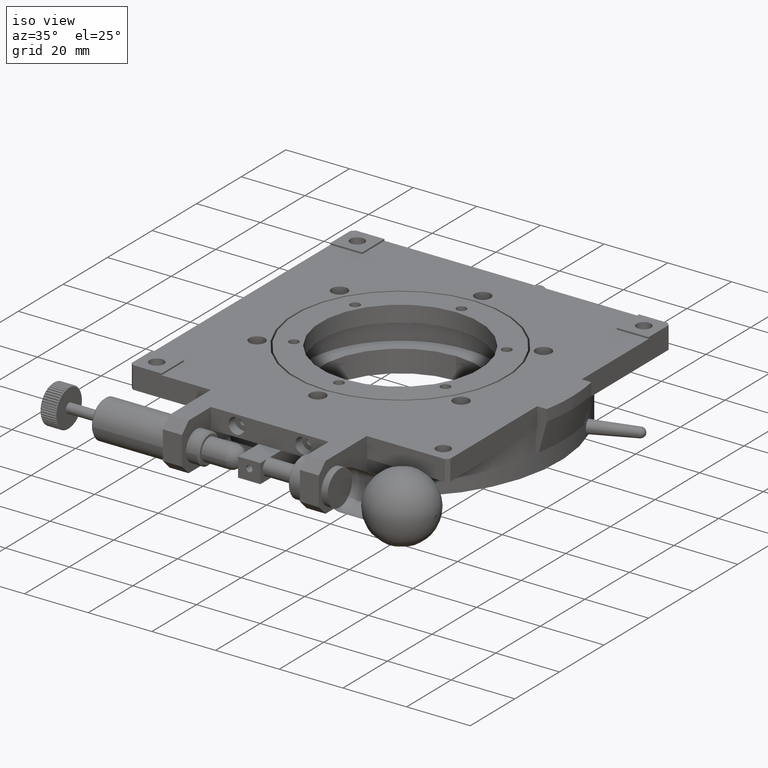
[diagram: clean part render]
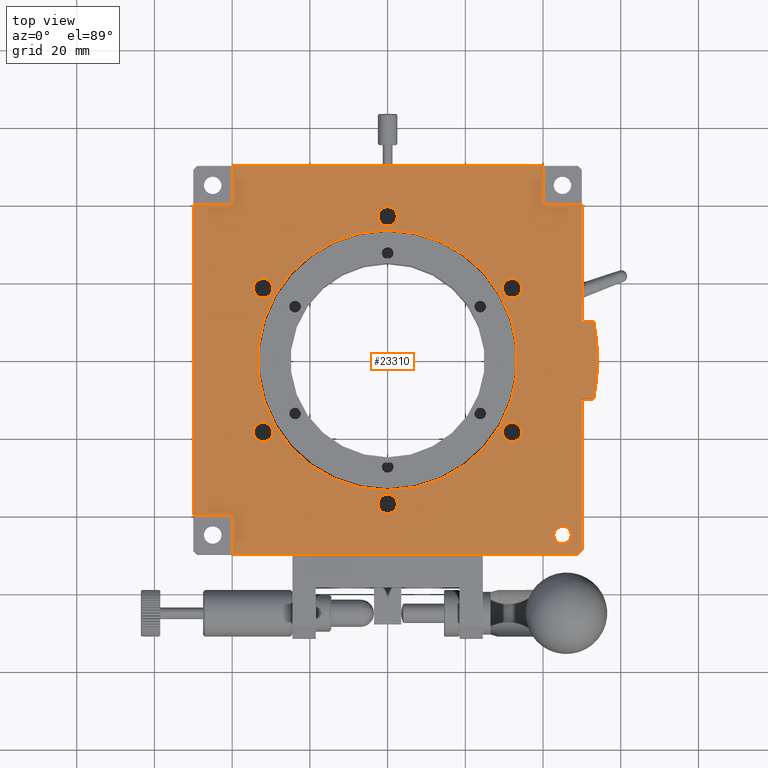
[diagram: tour spotlight — one face highlighted and labeled with its STEP entity id]
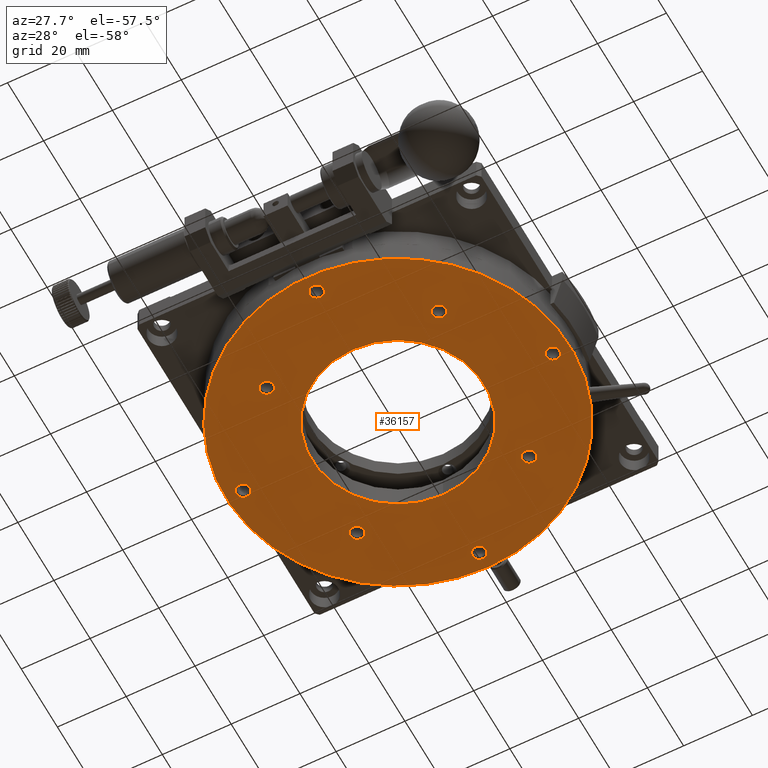
[diagram: tour spotlight — one face highlighted and labeled with its STEP entity id]
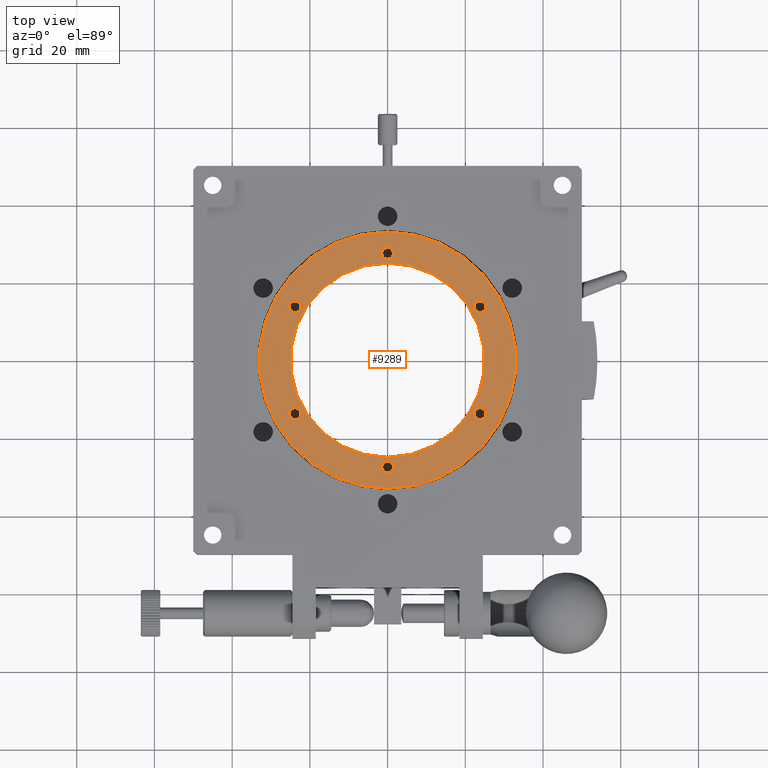
[diagram: tour spotlight — one face highlighted and labeled with its STEP entity id]
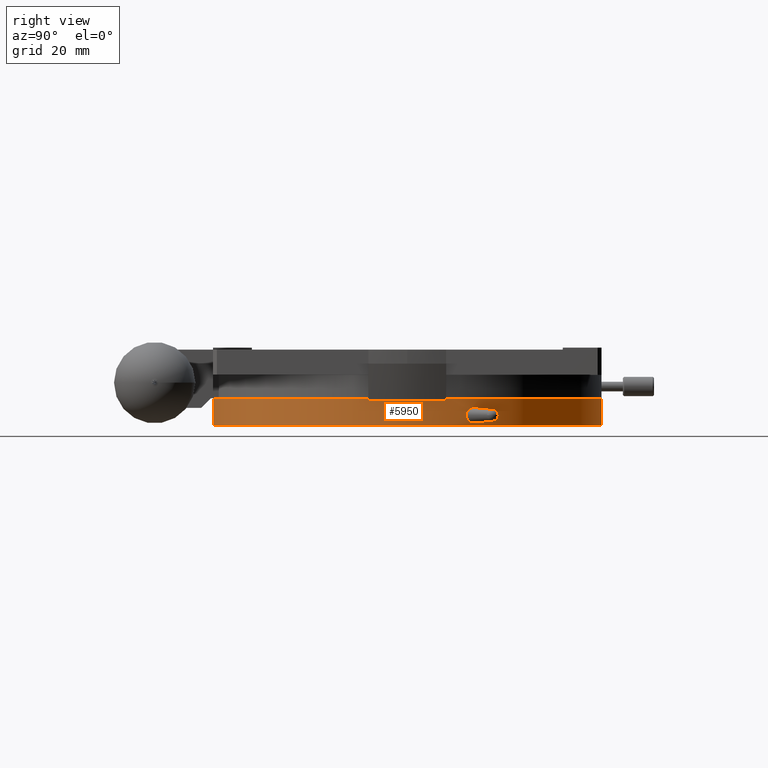
[diagram: tour spotlight — one face highlighted and labeled with its STEP entity id]
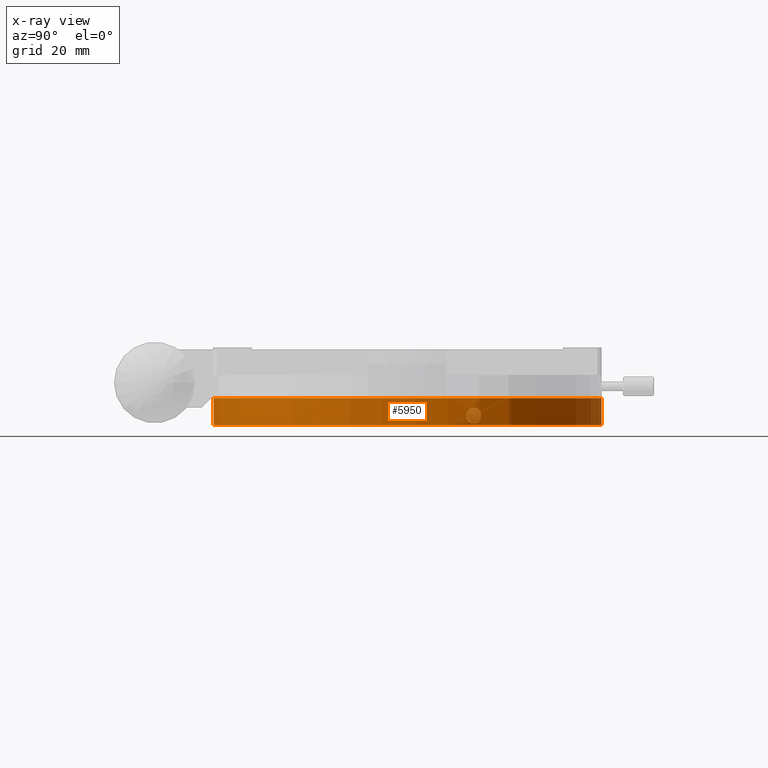
[diagram: x-ray of the same camera — body ghosted, this tour face saturated]
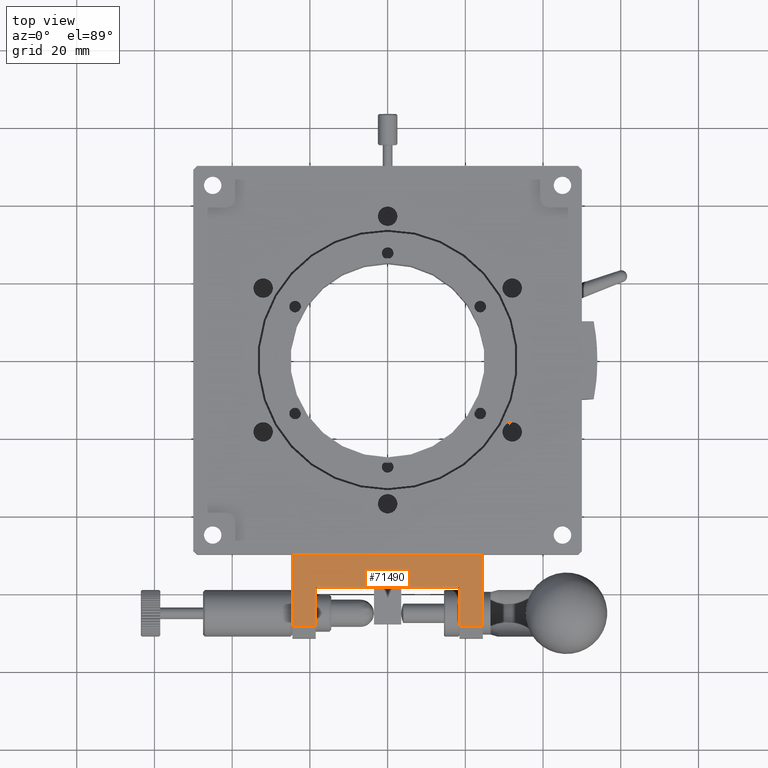
[diagram: tour spotlight — one face highlighted and labeled with its STEP entity id]
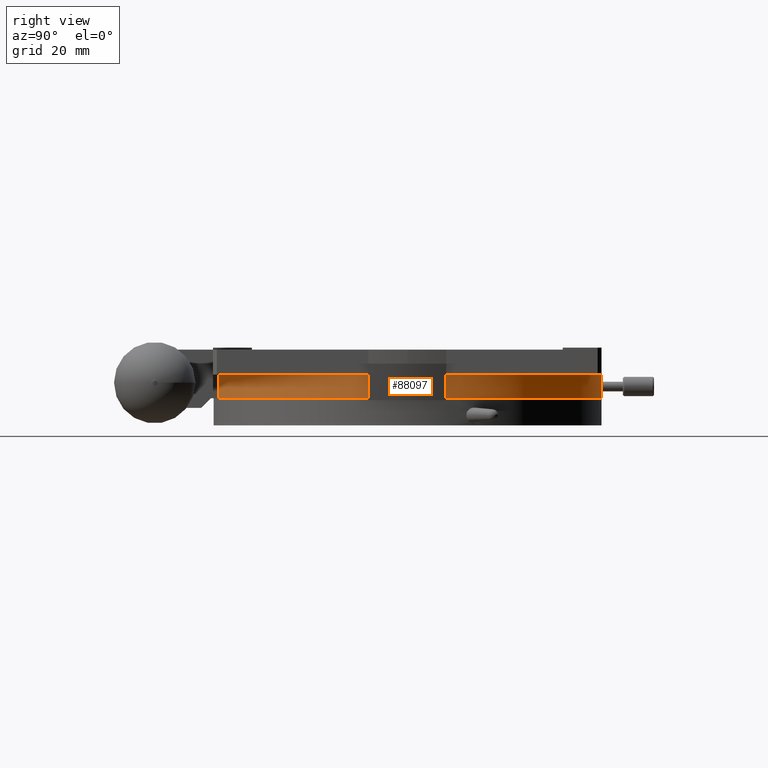
[diagram: tour spotlight — one face highlighted and labeled with its STEP entity id]
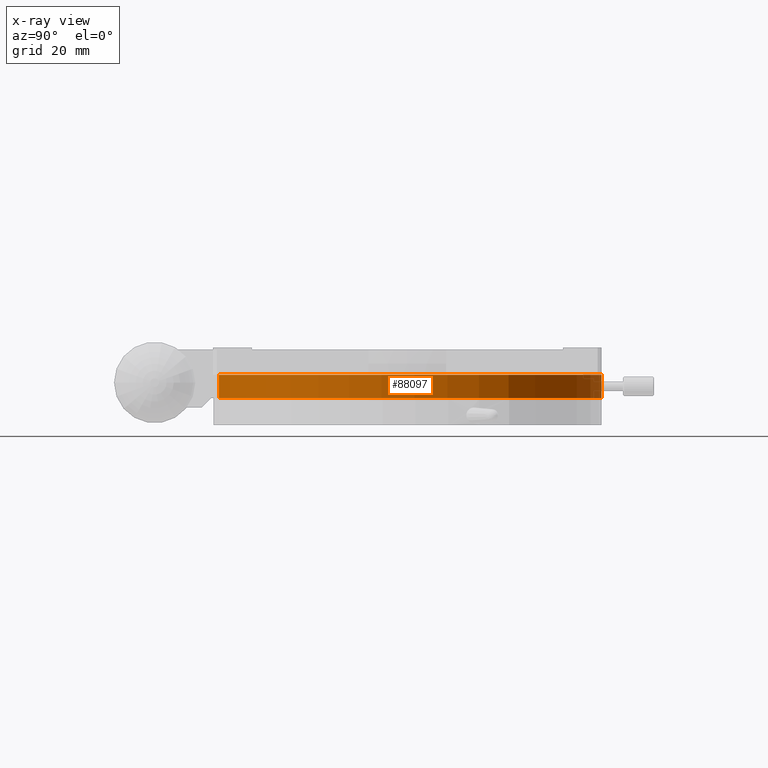
[diagram: x-ray of the same camera — body ghosted, this tour face saturated]
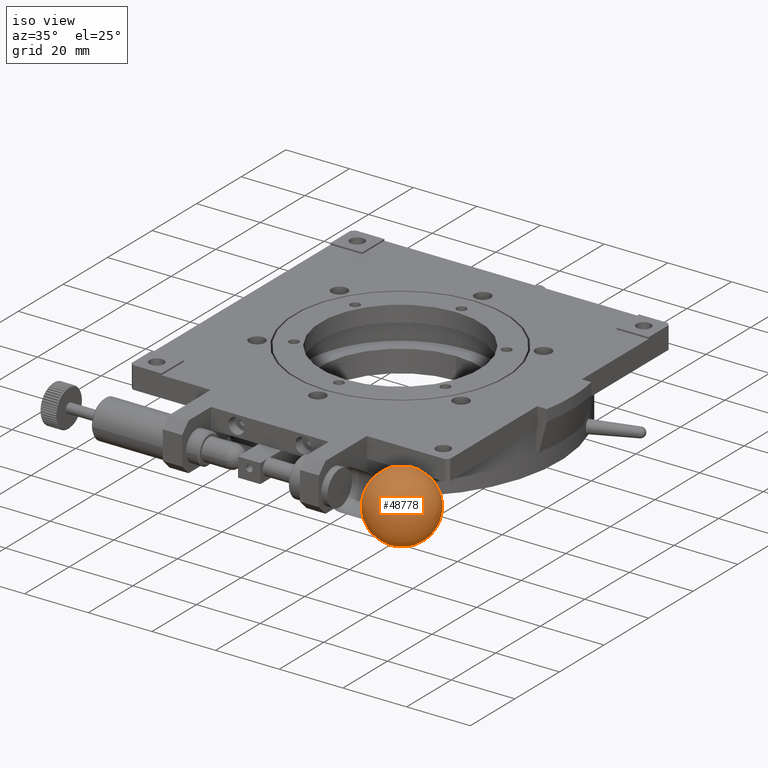
[diagram: tour spotlight — one face highlighted and labeled with its STEP entity id]
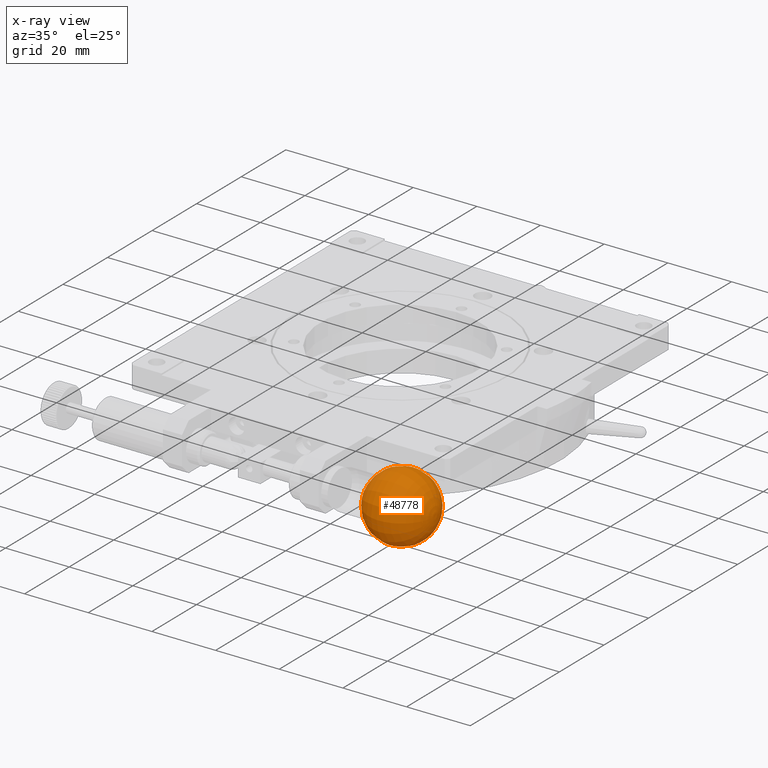
[diagram: x-ray of the same camera — body ghosted, this tour face saturated]
A machine part: a face-by-face anatomy tour. The part has 2365 B-rep faces; the first image is the clean iso view, then the 7 largest visible faces are spotlighted one at a time (largest first), each with its STEP entity span.

Face 1 — top view, entity #23310. In plain terms, the highlighted planar face has unit normal (0, 0, -1).
Definition (entity closure, byte-faithful):
#681 = CARTESIAN_POINT ( 'NONE',  ( 5.715438539111159746E-08, -0.004483744655981410261, 0.000000000000000000 ) ) ;
#824 = EDGE_CURVE ( 'NONE', #69994, #69994, #63629, .T. ) ;
#840 = AXIS2_PLACEMENT_3D ( 'NONE', #72481, #16772, #66458 ) ;
#1136 = DIRECTION ( 'NONE',  ( 0.000000000000000000, -1.000000000000000000, 0.000000000000000000 ) ) ;
#1145 = LINE ( 'NONE', #82281, #4180 ) ;
#1273 = CARTESIAN_POINT ( 'NONE',  ( 0.000000000000000000, 37.00000000000000000, 0.000000000000000000 ) ) ;
#2050 = DIRECTION ( 'NONE',  ( 0.000000000000000000, 0.000000000000000000, 1.000000000000000000 ) ) ;
#2086 = EDGE_CURVE ( 'NONE', #7222, #82461, #17035, .T. ) ;
#2393 = DIRECTION ( 'NONE',  ( -1.000000000000000000, -0.000000000000000000, -0.000000000000000000 ) ) ;
#2461 = LINE ( 'NONE', #58546, #66980 ) ;
#2802 = PLANE ( 'NONE',  #24931 ) ;
#3026 = ORIENTED_EDGE ( 'NONE', *, *, #73154, .F. ) ;
#4001 = VERTEX_POINT ( 'NONE', #26952 ) ;
#4129 = CARTESIAN_POINT ( 'NONE',  ( -32.04293994002419765, 18.50000000000000000, 0.000000000000000000 ) ) ;
#4166 = FACE_BOUND ( 'NONE', #4512, .T. ) ;
#4180 = VECTOR ( 'NONE', #83211, 1000.000000000000000 ) ;
#4512 = EDGE_LOOP ( 'NONE', ( #18870 ) ) ;
#4514 = VERTEX_POINT ( 'NONE', #61357 ) ;
#4916 = DIRECTION ( 'NONE',  ( 0.000000000000000000, 0.000000000000000000, 1.000000000000000000 ) ) ;
#5762 = CARTESIAN_POINT ( 'NONE',  ( -50.00000000000000000, 39.99999999999999289, 0.000000000000000000 ) ) ;
#6215 = DIRECTION ( 'NONE',  ( 0.000000000000000000, -1.000000000000000000, 0.000000000000000000 ) ) ;
#6808 = DIRECTION ( 'NONE',  ( 0.000000000000000000, 0.000000000000000000, 1.000000000000000000 ) ) ;
#7222 = VERTEX_POINT ( 'NONE', #63586 ) ;
#7478 = CIRCLE ( 'NONE', #26580, 53.96999999999759723 ) ;
#7933 = DIRECTION ( 'NONE',  ( -0.000000000000000000, -0.000000000000000000, -1.000000000000000000 ) ) ;
#8177 = DIRECTION ( 'NONE',  ( 1.000000000000000000, 0.000000000000000000, 0.000000000000000000 ) ) ;
#8352 = EDGE_CURVE ( 'NONE', #79624, #11862, #83166, .T. ) ;
#9128 = ORIENTED_EDGE ( 'NONE', *, *, #15969, .F. ) ;
#9284 = EDGE_CURVE ( 'NONE', #21734, #79624, #66532, .T. ) ;
#9570 = LINE ( 'NONE', #58317, #13850 ) ;
#9590 = ORIENTED_EDGE ( 'NONE', *, *, #16596, .F. ) ;
#9665 = EDGE_CURVE ( 'NONE', #28959, #28959, #65472, .T. ) ;
#9688 = FACE_BOUND ( 'NONE', #73736, .T. ) ;
#9832 = CARTESIAN_POINT ( 'NONE',  ( 50.00000000000000711, -10.00200000000000067, 0.000000000000000000 ) ) ;
#9968 = VERTEX_POINT ( 'NONE', #22918 ) ;
#10227 = ORIENTED_EDGE ( 'NONE', *, *, #17177, .F. ) ;
#10596 = FACE_BOUND ( 'NONE', #50531, .T. ) ;
#11511 = FACE_BOUND ( 'NONE', #23884, .T. ) ;
#11862 = VERTEX_POINT ( 'NONE', #78181 ) ;
#11966 = CARTESIAN_POINT ( 'NONE',  ( 49.00000000000000000, -50.00000000000000000, 1.951563910473907981E-15 ) ) ;
#12189 = DIRECTION ( 'NONE',  ( 0.000000000000000000, 0.000000000000000000, 1.000000000000000000 ) ) ;
#12290 = ORIENTED_EDGE ( 'NONE', *, *, #70185, .F. ) ;
#12731 = DIRECTION ( 'NONE',  ( 1.000000000000000000, 0.000000000000000000, 0.000000000000000000 ) ) ;
#12966 = DIRECTION ( 'NONE',  ( 0.000000000000000000, 0.000000000000000000, 1.000000000000000000 ) ) ;
#12981 = DIRECTION ( 'NONE',  ( 0.7071067811865474617, 0.7071067811865474617, 0.000000000000000000 ) ) ;
#13105 = CARTESIAN_POINT ( 'NONE',  ( 1.065814103640149963E-14, -37.00000000000000000, 0.000000000000000000 ) ) ;
#13394 = CIRCLE ( 'NONE', #56019, 53.96999999999970044 ) ;
#13777 = CARTESIAN_POINT ( 'NONE',  ( 24.50000000000000000, -50.00000000000000000, 0.000000000000000000 ) ) ;
#13850 = VECTOR ( 'NONE', #65710, 1000.000000000000000 ) ;
#13903 = LINE ( 'NONE', #76050, #88367 ) ;
#13966 = CARTESIAN_POINT ( 'NONE',  ( 50.00000000000000000, -0.001999999999999399827, 0.000000000000000000 ) ) ;
#14847 = AXIS2_PLACEMENT_3D ( 'NONE', #13105, #12189, #6215 ) ;
#14949 = DIRECTION ( 'NONE',  ( 0.000000000000000000, 1.000000000000000000, 0.000000000000000000 ) ) ;
#15131 = ORIENTED_EDGE ( 'NONE', *, *, #89229, .F. ) ;
#15969 = EDGE_CURVE ( 'NONE', #31836, #4514, #2461, .T. ) ;
#16596 = EDGE_CURVE ( 'NONE', #45952, #45952, #87560, .T. ) ;
#16772 = DIRECTION ( 'NONE',  ( 0.000000000000000000, 0.000000000000000000, 1.000000000000000000 ) ) ;
#16894 = VERTEX_POINT ( 'NONE', #37982 ) ;
#17035 = LINE ( 'NONE', #45988, #54867 ) ;
#17177 = EDGE_CURVE ( 'NONE', #84190, #50285, #1145, .T. ) ;
#17342 = CARTESIAN_POINT ( 'NONE',  ( -24.50000000000000000, -50.00000000000000000, -0.000000000000000000 ) ) ;
#17830 = CARTESIAN_POINT ( 'NONE',  ( 53.03500000000002501, -10.00200000000000067, 0.000000000000000000 ) ) ;
#17850 = CIRCLE ( 'NONE', #78167, 2.500000000000002220 ) ;
#18103 = AXIS2_PLACEMENT_3D ( 'NONE', #67963, #4916, #18268 ) ;
#18262 = EDGE_CURVE ( 'NONE', #70359, #83594, #13903, .T. ) ;
#18268 = DIRECTION ( 'NONE',  ( 0.000000000000000000, -1.000000000000000000, 0.000000000000000000 ) ) ;
#18428 = DIRECTION ( 'NONE',  ( 0.000000000000000000, 1.000000000000000000, 0.000000000000000000 ) ) ;
#18603 = LINE ( 'NONE', #86740, #54846 ) ;
#18870 = ORIENTED_EDGE ( 'NONE', *, *, #824, .F. ) ;
#19074 = CARTESIAN_POINT ( 'NONE',  ( 50.00000000000000711, 40.00000000000000000, 0.000000000000000000 ) ) ;
#19229 = VERTEX_POINT ( 'NONE', #36140 ) ;
#19429 = CARTESIAN_POINT ( 'NONE',  ( -32.04293994002419765, -18.50000000000000000, -0.000000000000000000 ) ) ;
#20857 = DIRECTION ( 'NONE',  ( -5.329070518164495347E-15, -1.000000000000000000, 0.000000000000000000 ) ) ;
#21718 = ORIENTED_EDGE ( 'NONE', *, *, #9665, .F. ) ;
#21734 = VERTEX_POINT ( 'NONE', #90735 ) ;
#22132 = CARTESIAN_POINT ( 'NONE',  ( 53.97000000000003439, -0.002000000378190901814, 0.000000000000000000 ) ) ;
#22918 = CARTESIAN_POINT ( 'NONE',  ( 1.065814103640149963E-14, -39.50000000000000000, 0.000000000000000000 ) ) ;
#23244 = CARTESIAN_POINT ( 'NONE',  ( 32.04293994002419765, 18.50000000000000000, 0.000000000000000000 ) ) ;
#23310 = ADVANCED_FACE ( 'NONE', ( #44669, #38611, #9688, #66290, #11511, #65835, #10596, #4166, #88396 ), #2802, .F. ) ;
#23439 = EDGE_LOOP ( 'NONE', ( #9590 ) ) ;
#23884 = EDGE_LOOP ( 'NONE', ( #37247 ) ) ;
#24294 = VECTOR ( 'NONE', #73029, 1000.000000000000000 ) ;
#24555 = ORIENTED_EDGE ( 'NONE', *, *, #18262, .T. ) ;
#24931 = AXIS2_PLACEMENT_3D ( 'NONE', #30818, #52878, #18428 ) ;
#25287 = DIRECTION ( 'NONE',  ( 0.000000000000000000, 0.000000000000000000, 1.000000000000000000 ) ) ;
#25503 = AXIS2_PLACEMENT_3D ( 'NONE', #23244, #72944, #66005 ) ;
#26076 = CARTESIAN_POINT ( 'NONE',  ( 50.00000000000000000, -49.00000000000000711, 1.951563910473907981E-15 ) ) ;
#26580 = AXIS2_PLACEMENT_3D ( 'NONE', #681, #27796, #1136 ) ;
#26952 = CARTESIAN_POINT ( 'NONE',  ( -32.04293994002419765, 16.00000000000000000, 0.000000000000000000 ) ) ;
#27403 = EDGE_CURVE ( 'NONE', #52315, #83594, #41527, .T. ) ;
#27683 = ORIENTED_EDGE ( 'NONE', *, *, #27403, .F. ) ;
#27796 = DIRECTION ( 'NONE',  ( -0.000000000000000000, -0.000000000000000000, -1.000000000000000000 ) ) ;
#28145 = CARTESIAN_POINT ( 'NONE',  ( 5.715235229519779896E-08, 0.0004837446562107330320, 0.000000000000000000 ) ) ;
#28169 = DIRECTION ( 'NONE',  ( -0.000000000000000000, -1.000000000000000000, -0.000000000000000000 ) ) ;
#28321 = AXIS2_PLACEMENT_3D ( 'NONE', #19429, #12966, #82934 ) ;
#28698 = VECTOR ( 'NONE', #90770, 1000.000000000000000 ) ;
#28897 = VERTEX_POINT ( 'NONE', #22132 ) ;
#28959 = VERTEX_POINT ( 'NONE', #85599 ) ;
#30324 = EDGE_LOOP ( 'NONE', ( #52866 ) ) ;
#30818 = CARTESIAN_POINT ( 'NONE',  ( 5.551115123125780178E-14, -0.001999999999999399827, 0.000000000000000000 ) ) ;
#31457 = DIRECTION ( 'NONE',  ( -0.000000000000000000, -1.000000000000000000, -0.000000000000000000 ) ) ;
#31600 = ORIENTED_EDGE ( 'NONE', *, *, #68421, .F. ) ;
#31836 = VERTEX_POINT ( 'NONE', #70825 ) ;
#32408 = CIRCLE ( 'NONE', #14847, 2.500000000000002220 ) ;
#32676 = CARTESIAN_POINT ( 'NONE',  ( 5.551115123125780178E-14, -50.00000000000000000, 0.000000000000000000 ) ) ;
#33802 = VECTOR ( 'NONE', #45604, 1000.000000000000000 ) ;
#35232 = CARTESIAN_POINT ( 'NONE',  ( 5.551115123125780178E-14, 40.00000000000000000, 0.000000000000000000 ) ) ;
#35733 = DIRECTION ( 'NONE',  ( 0.000000000000000000, -1.000000000000000000, 0.000000000000000000 ) ) ;
#35908 = LINE ( 'NONE', #41469, #28698 ) ;
#36068 = DIRECTION ( 'NONE',  ( 0.000000000000000000, -1.000000000000000000, 0.000000000000000000 ) ) ;
#36140 = CARTESIAN_POINT ( 'NONE',  ( 50.00000000000000711, 9.997999999999999332, 0.000000000000000000 ) ) ;
#36183 = LINE ( 'NONE', #55551, #43230 ) ;
#36749 = EDGE_CURVE ( 'NONE', #47781, #47781, #65130, .T. ) ;
#37247 = ORIENTED_EDGE ( 'NONE', *, *, #43612, .F. ) ;
#37796 = DIRECTION ( 'NONE',  ( 0.000000000000000000, 1.000000000000000000, 0.000000000000000000 ) ) ;
#37982 = CARTESIAN_POINT ( 'NONE',  ( 0.000000000000000000, 34.49999999999999289, 0.000000000000000000 ) ) ;
#38268 = EDGE_CURVE ( 'NONE', #50509, #19229, #18603, .T. ) ;
#38611 = FACE_OUTER_BOUND ( 'NONE', #45119, .T. ) ;
#41016 = ORIENTED_EDGE ( 'NONE', *, *, #36749, .F. ) ;
#41469 = CARTESIAN_POINT ( 'NONE',  ( 40.00000000000000000, -0.001999999999999399827, 0.000000000000000000 ) ) ;
#41527 = LINE ( 'NONE', #13966, #64750 ) ;
#41869 = CIRCLE ( 'NONE', #46281, 2.499999999999998668 ) ;
#42383 = EDGE_CURVE ( 'NONE', #66829, #50509, #36183, .T. ) ;
#43230 = VECTOR ( 'NONE', #71210, 1000.000000000000000 ) ;
#43430 = ORIENTED_EDGE ( 'NONE', *, *, #51776, .F. ) ;
#43446 = LINE ( 'NONE', #71988, #55882 ) ;
#43612 = EDGE_CURVE ( 'NONE', #54201, #54201, #85958, .T. ) ;
#44278 = ORIENTED_EDGE ( 'NONE', *, *, #9284, .F. ) ;
#44669 = FACE_BOUND ( 'NONE', #23439, .T. ) ;
#44815 = CARTESIAN_POINT ( 'NONE',  ( 45.00000000000000000, -45.00000000000000000, 0.000000000000000000 ) ) ;
#45102 = ORIENTED_EDGE ( 'NONE', *, *, #84410, .F. ) ;
#45119 = EDGE_LOOP ( 'NONE', ( #43430, #87668, #31600, #66731, #44278, #65495, #9128, #15131, #10227, #56051, #24555, #27683, #45102, #79470, #12290, #61890, #76041, #84506 ) ) ;
#45604 = DIRECTION ( 'NONE',  ( -1.000000000000000000, -0.000000000000000000, -0.000000000000000000 ) ) ;
#45952 = VERTEX_POINT ( 'NONE', #80051 ) ;
#45988 = CARTESIAN_POINT ( 'NONE',  ( 5.551115123125780178E-14, 50.00000000000000000, 0.000000000000000000 ) ) ;
#46281 = AXIS2_PLACEMENT_3D ( 'NONE', #4129, #25287, #68080 ) ;
#46710 = VERTEX_POINT ( 'NONE', #85843 ) ;
#47598 = ORIENTED_EDGE ( 'NONE', *, *, #70051, .F. ) ;
#47636 = DIRECTION ( 'NONE',  ( -1.000000000000000000, -0.000000000000000000, -0.000000000000000000 ) ) ;
#47781 = VERTEX_POINT ( 'NONE', #81882 ) ;
#49096 = LINE ( 'NONE', #77212, #82977 ) ;
#50285 = VERTEX_POINT ( 'NONE', #17342 ) ;
#50509 = VERTEX_POINT ( 'NONE', #19074 ) ;
#50531 = EDGE_LOOP ( 'NONE', ( #47598 ) ) ;
#51776 = EDGE_CURVE ( 'NONE', #82461, #66829, #35908, .T. ) ;
#52315 = VERTEX_POINT ( 'NONE', #9832 ) ;
#52866 = ORIENTED_EDGE ( 'NONE', *, *, #85949, .F. ) ;
#52878 = DIRECTION ( 'NONE',  ( 0.000000000000000000, 0.000000000000000000, -1.000000000000000000 ) ) ;
#53837 = LINE ( 'NONE', #32676, #33802 ) ;
#54201 = VERTEX_POINT ( 'NONE', #82325 ) ;
#54523 = LINE ( 'NONE', #74835, #65477 ) ;
#54846 = VECTOR ( 'NONE', #31457, 1000.000000000000000 ) ;
#54867 = VECTOR ( 'NONE', #81453, 1000.000000000000000 ) ;
#55551 = CARTESIAN_POINT ( 'NONE',  ( 5.551115123125780178E-14, 40.00000000000000000, 0.000000000000000000 ) ) ;
#55882 = VECTOR ( 'NONE', #14949, 1000.000000000000000 ) ;
#56019 = AXIS2_PLACEMENT_3D ( 'NONE', #28145, #7933, #20857 ) ;
#56051 = ORIENTED_EDGE ( 'NONE', *, *, #61623, .F. ) ;
#58317 = CARTESIAN_POINT ( 'NONE',  ( 5.551115123125780178E-14, -10.00200000000000067, 0.000000000000000000 ) ) ;
#58473 = LINE ( 'NONE', #65425, #66270 ) ;
#58546 = CARTESIAN_POINT ( 'NONE',  ( -40.00000000000000000, -0.001999999999999399827, -0.000000000000000000 ) ) ;
#61357 = CARTESIAN_POINT ( 'NONE',  ( -40.00000000000000000, -40.00000000000000000, -0.000000000000000000 ) ) ;
#61623 = EDGE_CURVE ( 'NONE', #70359, #84190, #53837, .T. ) ;
#61890 = ORIENTED_EDGE ( 'NONE', *, *, #89105, .F. ) ;
#62505 = AXIS2_PLACEMENT_3D ( 'NONE', #44815, #2050, #36068 ) ;
#63586 = CARTESIAN_POINT ( 'NONE',  ( -40.00000000000000000, 50.00000000000000000, 0.000000000000000000 ) ) ;
#63629 = CIRCLE ( 'NONE', #28321, 2.499999999999998668 ) ;
#64400 = EDGE_CURVE ( 'NONE', #4514, #21734, #58473, .T. ) ;
#64750 = VECTOR ( 'NONE', #28169, 1000.000000000000000 ) ;
#65130 = CIRCLE ( 'NONE', #18103, 2.499999999999998668 ) ;
#65201 = EDGE_LOOP ( 'NONE', ( #3026 ) ) ;
#65425 = CARTESIAN_POINT ( 'NONE',  ( 5.551115123125780178E-14, -40.00000000000000000, 0.000000000000000000 ) ) ;
#65472 = CIRCLE ( 'NONE', #62505, 2.250000000000001776 ) ;
#65477 = VECTOR ( 'NONE', #47636, 1000.000000000000000 ) ;
#65495 = ORIENTED_EDGE ( 'NONE', *, *, #64400, .F. ) ;
#65710 = DIRECTION ( 'NONE',  ( -1.000000000000000000, -0.000000000000000000, -0.000000000000000000 ) ) ;
#65835 = FACE_BOUND ( 'NONE', #67969, .T. ) ;
#66005 = DIRECTION ( 'NONE',  ( 0.000000000000000000, -1.000000000000000000, 0.000000000000000000 ) ) ;
#66270 = VECTOR ( 'NONE', #2393, 1000.000000000000000 ) ;
#66290 = FACE_BOUND ( 'NONE', #65201, .T. ) ;
#66458 = DIRECTION ( 'NONE',  ( 0.000000000000000000, -1.000000000000000000, 0.000000000000000000 ) ) ;
#66532 = LINE ( 'NONE', #73454, #24294 ) ;
#66731 = ORIENTED_EDGE ( 'NONE', *, *, #8352, .F. ) ;
#66829 = VERTEX_POINT ( 'NONE', #79797 ) ;
#66980 = VECTOR ( 'NONE', #37796, 1000.000000000000000 ) ;
#67150 = EDGE_CURVE ( 'NONE', #28897, #84453, #13394, .T. ) ;
#67963 = CARTESIAN_POINT ( 'NONE',  ( 32.04293994002419765, -18.50000000000000000, 0.000000000000000000 ) ) ;
#67969 = EDGE_LOOP ( 'NONE', ( #41016 ) ) ;
#68080 = DIRECTION ( 'NONE',  ( 0.000000000000000000, -1.000000000000000000, 0.000000000000000000 ) ) ;
#68421 = EDGE_CURVE ( 'NONE', #11862, #7222, #43446, .T. ) ;
#69994 = VERTEX_POINT ( 'NONE', #78695 ) ;
#70051 = EDGE_CURVE ( 'NONE', #9968, #9968, #32408, .T. ) ;
#70185 = EDGE_CURVE ( 'NONE', #46710, #28897, #7478, .T. ) ;
#70359 = VERTEX_POINT ( 'NONE', #11966 ) ;
#70825 = CARTESIAN_POINT ( 'NONE',  ( -39.99999999999999289, -50.00000000000000000, -0.000000000000000000 ) ) ;
#71210 = DIRECTION ( 'NONE',  ( 1.000000000000000000, 0.000000000000000000, 0.000000000000000000 ) ) ;
#71327 = VECTOR ( 'NONE', #12731, 1000.000000000000000 ) ;
#71988 = CARTESIAN_POINT ( 'NONE',  ( -40.00000000000000000, -0.001999999999999399827, -0.000000000000000000 ) ) ;
#72253 = CARTESIAN_POINT ( 'NONE',  ( 39.99999999999999289, 50.00000000000000000, 0.000000000000000000 ) ) ;
#72481 = CARTESIAN_POINT ( 'NONE',  ( 0.000000000000000000, -0.002000000000000000042, 0.000000000000000000 ) ) ;
#72944 = DIRECTION ( 'NONE',  ( 0.000000000000000000, 0.000000000000000000, 1.000000000000000000 ) ) ;
#73029 = DIRECTION ( 'NONE',  ( 0.000000000000000000, 1.000000000000000000, 0.000000000000000000 ) ) ;
#73154 = EDGE_CURVE ( 'NONE', #16894, #16894, #17850, .T. ) ;
#73454 = CARTESIAN_POINT ( 'NONE',  ( -50.00000000000000000, -0.001999999999999399827, -0.000000000000000000 ) ) ;
#73736 = EDGE_LOOP ( 'NONE', ( #21718 ) ) ;
#74835 = CARTESIAN_POINT ( 'NONE',  ( 5.551115123125780178E-14, -50.00000000000000000, 0.000000000000000000 ) ) ;
#76041 = ORIENTED_EDGE ( 'NONE', *, *, #38268, .F. ) ;
#76050 = CARTESIAN_POINT ( 'NONE',  ( 50.00000000000000000, -49.00000000000000000, 3.469446951953614189E-15 ) ) ;
#77212 = CARTESIAN_POINT ( 'NONE',  ( 5.551115123125780178E-14, 9.997999999999999332, 0.000000000000000000 ) ) ;
#78167 = AXIS2_PLACEMENT_3D ( 'NONE', #1273, #6808, #35733 ) ;
#78181 = CARTESIAN_POINT ( 'NONE',  ( -40.00000000000000000, 40.00000000000000000, 0.000000000000000000 ) ) ;
#78695 = CARTESIAN_POINT ( 'NONE',  ( -32.04293994002419765, -20.99999999999999645, 0.000000000000000000 ) ) ;
#79470 = ORIENTED_EDGE ( 'NONE', *, *, #67150, .F. ) ;
#79624 = VERTEX_POINT ( 'NONE', #5762 ) ;
#79797 = CARTESIAN_POINT ( 'NONE',  ( 40.00000000000000000, 40.00000000000000000, 0.000000000000000000 ) ) ;
#80051 = CARTESIAN_POINT ( 'NONE',  ( 0.000000000000000000, -33.50200000000000244, 0.000000000000000000 ) ) ;
#81453 = DIRECTION ( 'NONE',  ( 1.000000000000000000, 0.000000000000000000, 0.000000000000000000 ) ) ;
#81882 = CARTESIAN_POINT ( 'NONE',  ( 32.04293994002419765, -20.99999999999999645, 0.000000000000000000 ) ) ;
#82281 = CARTESIAN_POINT ( 'NONE',  ( 5.551115123125780178E-14, -50.00000000000000000, 0.000000000000000000 ) ) ;
#82325 = CARTESIAN_POINT ( 'NONE',  ( 32.04293994002419765, 16.00000000000000000, 0.000000000000000000 ) ) ;
#82461 = VERTEX_POINT ( 'NONE', #72253 ) ;
#82934 = DIRECTION ( 'NONE',  ( 0.000000000000000000, -1.000000000000000000, 0.000000000000000000 ) ) ;
#82977 = VECTOR ( 'NONE', #8177, 1000.000000000000000 ) ;
#83166 = LINE ( 'NONE', #35232, #71327 ) ;
#83211 = DIRECTION ( 'NONE',  ( -1.000000000000000000, -0.000000000000000000, -0.000000000000000000 ) ) ;
#83594 = VERTEX_POINT ( 'NONE', #26076 ) ;
#84190 = VERTEX_POINT ( 'NONE', #13777 ) ;
#84410 = EDGE_CURVE ( 'NONE', #84453, #52315, #9570, .T. ) ;
#84453 = VERTEX_POINT ( 'NONE', #17830 ) ;
#84506 = ORIENTED_EDGE ( 'NONE', *, *, #42383, .F. ) ;
#85599 = CARTESIAN_POINT ( 'NONE',  ( 45.00000000000000000, -47.25000000000000000, 0.000000000000000000 ) ) ;
#85843 = CARTESIAN_POINT ( 'NONE',  ( 53.03499999999998948, 9.997999999999997556, 0.000000000000000000 ) ) ;
#85949 = EDGE_CURVE ( 'NONE', #4001, #4001, #41869, .T. ) ;
#85958 = CIRCLE ( 'NONE', #25503, 2.499999999999998668 ) ;
#86740 = CARTESIAN_POINT ( 'NONE',  ( 50.00000000000000000, -0.001999999999999399827, 0.000000000000000000 ) ) ;
#87560 = CIRCLE ( 'NONE', #840, 33.50000000000000000 ) ;
#87668 = ORIENTED_EDGE ( 'NONE', *, *, #2086, .F. ) ;
#88367 = VECTOR ( 'NONE', #12981, 1000.000000000000114 ) ;
#88396 = FACE_BOUND ( 'NONE', #30324, .T. ) ;
#89105 = EDGE_CURVE ( 'NONE', #19229, #46710, #49096, .T. ) ;
#89229 = EDGE_CURVE ( 'NONE', #50285, #31836, #54523, .T. ) ;
#90735 = CARTESIAN_POINT ( 'NONE',  ( -50.00000000000000000, -40.00000000000000000, -0.000000000000000000 ) ) ;
#90770 = DIRECTION ( 'NONE',  ( -0.000000000000000000, -1.000000000000000000, -0.000000000000000000 ) ) ;

Face 2 — auxiliary view, entity #36157. In plain terms, the highlighted planar face has unit normal (0, 0, -1).
Definition (entity closure, byte-faithful):
#245 = EDGE_LOOP ( 'NONE', ( #88842 ) ) ;
#1516 = CIRCLE ( 'NONE', #54411, 1.999999999952706276 ) ;
#2216 = DIRECTION ( 'NONE',  ( 0.000000000000000000, 0.000000000000000000, -1.000000000000000000 ) ) ;
#2333 = EDGE_LOOP ( 'NONE', ( #57992 ) ) ;
#4712 = ORIENTED_EDGE ( 'NONE', *, *, #29159, .T. ) ;
#5359 = VERTEX_POINT ( 'NONE', #60560 ) ;
#6456 = DIRECTION ( 'NONE',  ( -0.000000000000000000, -0.000000000000000000, 1.000000000000000000 ) ) ;
#7869 = CARTESIAN_POINT ( 'NONE',  ( -45.00000000000000000, -5.421010862427522170E-15, -19.49999999994315658 ) ) ;
#10335 = CARTESIAN_POINT ( 'NONE',  ( -0.004104919633988400249, 0.009088871407399780680, -19.50000000000000000 ) ) ;
#10424 = VERTEX_POINT ( 'NONE', #64771 ) ;
#10920 = FACE_BOUND ( 'NONE', #41327, .T. ) ;
#12383 = DIRECTION ( 'NONE',  ( 0.000000000000000000, 1.000000000000000000, 0.000000000000000000 ) ) ;
#14112 = CIRCLE ( 'NONE', #74354, 25.00000000000000000 ) ;
#14193 = CARTESIAN_POINT ( 'NONE',  ( -4.886369087131470224E-11, 49.99999999992338218, -19.50000000000000000 ) ) ;
#15404 = CIRCLE ( 'NONE', #31516, 1.999999999952711383 ) ;
#15580 = EDGE_CURVE ( 'NONE', #58391, #58391, #14112, .T. ) ;
#16766 = CIRCLE ( 'NONE', #24136, 2.000000000050475180 ) ;
#17702 = DIRECTION ( 'NONE',  ( 0.000000000000000000, 1.000000000000000000, 0.000000000000000000 ) ) ;
#18369 = VERTEX_POINT ( 'NONE', #46426 ) ;
#18527 = EDGE_LOOP ( 'NONE', ( #83849 ) ) ;
#21114 = CARTESIAN_POINT ( 'NONE',  ( -25.00000000000000000, 26.99999999998681233, -19.50000000005684342 ) ) ;
#22408 = AXIS2_PLACEMENT_3D ( 'NONE', #57792, #22891, #38404 ) ;
#22591 = DIRECTION ( 'NONE',  ( 0.000000000000000000, 1.000000000000000000, 0.000000000000000000 ) ) ;
#22891 = DIRECTION ( 'NONE',  ( -0.000000000000000000, -0.000000000000000000, 1.000000000000000000 ) ) ;
#24136 = AXIS2_PLACEMENT_3D ( 'NONE', #41388, #6456, #34486 ) ;
#25716 = CARTESIAN_POINT ( 'NONE',  ( -25.00000000000000000, -23.00000000008139978, -19.50000000000000000 ) ) ;
#28793 = ORIENTED_EDGE ( 'NONE', *, *, #57542, .T. ) ;
#29159 = EDGE_CURVE ( 'NONE', #74520, #74520, #60174, .T. ) ;
#30075 = AXIS2_PLACEMENT_3D ( 'NONE', #30675, #2216, #78604 ) ;
#30675 = CARTESIAN_POINT ( 'NONE',  ( -4.886369087131470224E-11, -2.271793864139230125E-11, -19.50000000000000000 ) ) ;
#31516 = AXIS2_PLACEMENT_3D ( 'NONE', #7869, #86087, #22591 ) ;
#31763 = DIRECTION ( 'NONE',  ( 0.000000000000000000, 1.000000000000000000, 0.000000000000000000 ) ) ;
#32392 = DIRECTION ( 'NONE',  ( -0.000000000000000000, -0.000000000000000000, 1.000000000000000000 ) ) ;
#32510 = FACE_BOUND ( 'NONE', #35591, .T. ) ;
#34229 = ORIENTED_EDGE ( 'NONE', *, *, #74923, .T. ) ;
#34400 = VERTEX_POINT ( 'NONE', #14193 ) ;
#34405 = CIRCLE ( 'NONE', #62365, 2.000000000025467628 ) ;
#34475 = CIRCLE ( 'NONE', #30075, 49.99999999994609823 ) ;
#34486 = DIRECTION ( 'NONE',  ( 0.000000000000000000, 1.000000000000000000, 0.000000000000000000 ) ) ;
#34504 = DIRECTION ( 'NONE',  ( -0.000000000000000000, -0.000000000000000000, 1.000000000000000000 ) ) ;
#35591 = EDGE_LOOP ( 'NONE', ( #34229 ) ) ;
#35926 = ORIENTED_EDGE ( 'NONE', *, *, #15580, .T. ) ;
#36157 = ADVANCED_FACE ( 'NONE', ( #55059, #40327, #73992, #10920, #67991, #38944, #82254, #60136, #32510, #53212 ), #46352, .T. ) ;
#37134 = EDGE_LOOP ( 'NONE', ( #4712 ) ) ;
#37924 = ORIENTED_EDGE ( 'NONE', *, *, #41754, .T. ) ;
#38404 = DIRECTION ( 'NONE',  ( 0.000000000000000000, 1.000000000000000000, 0.000000000000000000 ) ) ;
#38944 = FACE_BOUND ( 'NONE', #60527, .T. ) ;
#39393 = DIRECTION ( 'NONE',  ( 0.000000000000000000, 0.000000000000000000, -1.000000000000000000 ) ) ;
#40327 = FACE_OUTER_BOUND ( 'NONE', #18527, .T. ) ;
#41327 = EDGE_LOOP ( 'NONE', ( #37924 ) ) ;
#41388 = CARTESIAN_POINT ( 'NONE',  ( 0.000000000000000000, -45.00000000000000000, -19.50000000005684342 ) ) ;
#41754 = EDGE_CURVE ( 'NONE', #18369, #18369, #34405, .T. ) ;
#42263 = CIRCLE ( 'NONE', #61382, 1.999999999986810995 ) ;
#42673 = VERTEX_POINT ( 'NONE', #21114 ) ;
#44779 = EDGE_CURVE ( 'NONE', #34400, #34400, #34475, .T. ) ;
#46352 = PLANE ( 'NONE',  #47370 ) ;
#46426 = CARTESIAN_POINT ( 'NONE',  ( -6.938893903907229955E-15, 47.00000000002546585, -19.50000000005684342 ) ) ;
#46881 = CARTESIAN_POINT ( 'NONE',  ( -25.00000000000000000, -25.00000000000000000, -19.50000000000000000 ) ) ;
#47370 = AXIS2_PLACEMENT_3D ( 'NONE', #60599, #39393, #67521 ) ;
#47697 = EDGE_CURVE ( 'NONE', #56941, #56941, #16766, .T. ) ;
#49390 = EDGE_LOOP ( 'NONE', ( #35926 ) ) ;
#50343 = DIRECTION ( 'NONE',  ( 0.000000000000000000, 1.000000000000000000, 0.000000000000000000 ) ) ;
#50896 = EDGE_CURVE ( 'NONE', #55582, #55582, #15404, .T. ) ;
#52445 = CARTESIAN_POINT ( 'NONE',  ( 45.00000000000000000, 0.000000000000000000, -19.49999999994315658 ) ) ;
#53212 = FACE_BOUND ( 'NONE', #87558, .T. ) ;
#54228 = CARTESIAN_POINT ( 'NONE',  ( -6.938893903907229955E-15, 45.00000000000000000, -19.50000000005684342 ) ) ;
#54411 = AXIS2_PLACEMENT_3D ( 'NONE', #52445, #58020, #31763 ) ;
#54673 = DIRECTION ( 'NONE',  ( -0.000000000000000000, -0.000000000000000000, 1.000000000000000000 ) ) ;
#55059 = FACE_BOUND ( 'NONE', #49390, .T. ) ;
#55582 = VERTEX_POINT ( 'NONE', #78588 ) ;
#56941 = VERTEX_POINT ( 'NONE', #83700 ) ;
#57222 = EDGE_CURVE ( 'NONE', #69882, #69882, #42263, .T. ) ;
#57542 = EDGE_CURVE ( 'NONE', #42673, #42673, #71726, .T. ) ;
#57792 = CARTESIAN_POINT ( 'NONE',  ( 25.00000000000000000, -25.00000000000000000, -19.50000000000000000 ) ) ;
#57992 = ORIENTED_EDGE ( 'NONE', *, *, #57222, .T. ) ;
#58020 = DIRECTION ( 'NONE',  ( -0.000000000000000000, -0.000000000000000000, 1.000000000000000000 ) ) ;
#58391 = VERTEX_POINT ( 'NONE', #87422 ) ;
#60136 = FACE_BOUND ( 'NONE', #37134, .T. ) ;
#60174 = CIRCLE ( 'NONE', #66057, 1.999999999918601556 ) ;
#60527 = EDGE_LOOP ( 'NONE', ( #81464 ) ) ;
#60560 = CARTESIAN_POINT ( 'NONE',  ( 25.00000000000000000, -23.00000000008139978, -19.50000000000000000 ) ) ;
#60599 = CARTESIAN_POINT ( 'NONE',  ( -4.886369087131470224E-11, -2.271793864139230125E-11, -19.50000000000000000 ) ) ;
#61382 = AXIS2_PLACEMENT_3D ( 'NONE', #85375, #78012, #50343 ) ;
#62365 = AXIS2_PLACEMENT_3D ( 'NONE', #54228, #82346, #12383 ) ;
#64771 = CARTESIAN_POINT ( 'NONE',  ( 45.00000000000000000, 1.999999999952706276, -19.49999999994315658 ) ) ;
#66057 = AXIS2_PLACEMENT_3D ( 'NONE', #46881, #54673, #82798 ) ;
#67244 = AXIS2_PLACEMENT_3D ( 'NONE', #88907, #34504, #81525 ) ;
#67521 = DIRECTION ( 'NONE',  ( 0.000000000000000000, 1.000000000000000000, 0.000000000000000000 ) ) ;
#67991 = FACE_BOUND ( 'NONE', #74919, .T. ) ;
#68810 = EDGE_CURVE ( 'NONE', #10424, #10424, #1516, .T. ) ;
#69882 = VERTEX_POINT ( 'NONE', #77242 ) ;
#70833 = ORIENTED_EDGE ( 'NONE', *, *, #50896, .T. ) ;
#71726 = CIRCLE ( 'NONE', #67244, 1.999999999986810995 ) ;
#73775 = CIRCLE ( 'NONE', #22408, 1.999999999918601556 ) ;
#73992 = FACE_BOUND ( 'NONE', #245, .T. ) ;
#74354 = AXIS2_PLACEMENT_3D ( 'NONE', #10335, #32392, #17702 ) ;
#74520 = VERTEX_POINT ( 'NONE', #25716 ) ;
#74919 = EDGE_LOOP ( 'NONE', ( #70833 ) ) ;
#74923 = EDGE_CURVE ( 'NONE', #5359, #5359, #73775, .T. ) ;
#77242 = CARTESIAN_POINT ( 'NONE',  ( 25.00000000000000000, 26.99999999998681233, -19.50000000005684342 ) ) ;
#78012 = DIRECTION ( 'NONE',  ( -0.000000000000000000, -0.000000000000000000, 1.000000000000000000 ) ) ;
#78588 = CARTESIAN_POINT ( 'NONE',  ( -45.00000000000000000, 1.999999999952706276, -19.49999999994315658 ) ) ;
#78604 = DIRECTION ( 'NONE',  ( 0.000000000000000000, 1.000000000000000000, 0.000000000000000000 ) ) ;
#81464 = ORIENTED_EDGE ( 'NONE', *, *, #47697, .T. ) ;
#81525 = DIRECTION ( 'NONE',  ( 0.000000000000000000, 1.000000000000000000, 0.000000000000000000 ) ) ;
#82254 = FACE_BOUND ( 'NONE', #2333, .T. ) ;
#82346 = DIRECTION ( 'NONE',  ( -0.000000000000000000, -0.000000000000000000, 1.000000000000000000 ) ) ;
#82798 = DIRECTION ( 'NONE',  ( 0.000000000000000000, 1.000000000000000000, 0.000000000000000000 ) ) ;
#83700 = CARTESIAN_POINT ( 'NONE',  ( 0.000000000000000000, -42.99999999994952304, -19.50000000005684342 ) ) ;
#83849 = ORIENTED_EDGE ( 'NONE', *, *, #44779, .T. ) ;
#85375 = CARTESIAN_POINT ( 'NONE',  ( 25.00000000000000000, 25.00000000000000000, -19.50000000005684342 ) ) ;
#86087 = DIRECTION ( 'NONE',  ( -0.000000000000000000, -0.000000000000000000, 1.000000000000000000 ) ) ;
#87422 = CARTESIAN_POINT ( 'NONE',  ( -0.004104919633988400249, 25.00908887140739978, -19.50000000000000000 ) ) ;
#87558 = EDGE_LOOP ( 'NONE', ( #28793 ) ) ;
#88842 = ORIENTED_EDGE ( 'NONE', *, *, #68810, .T. ) ;
#88907 = CARTESIAN_POINT ( 'NONE',  ( -25.00000000000000000, 25.00000000000000000, -19.50000000005684342 ) ) ;

Face 3 — top view, entity #9289. In plain terms, the highlighted planar face has unit normal (0, 0, -1).
Definition (entity closure, byte-faithful):
#74 = EDGE_LOOP ( 'NONE', ( #9803 ) ) ;
#680 = EDGE_LOOP ( 'NONE', ( #8039 ) ) ;
#1393 = CARTESIAN_POINT ( 'NONE',  ( 23.81569860407210015, -15.25000000000000000, 0.000000000000000000 ) ) ;
#2163 = FACE_BOUND ( 'NONE', #13897, .T. ) ;
#4434 = DIRECTION ( 'NONE',  ( 0.000000000000000000, 0.000000000000000000, 1.000000000000000000 ) ) ;
#6701 = EDGE_CURVE ( 'NONE', #34961, #34961, #88966, .T. ) ;
#7382 = EDGE_CURVE ( 'NONE', #36755, #36755, #72782, .T. ) ;
#8039 = ORIENTED_EDGE ( 'NONE', *, *, #60653, .F. ) ;
#8600 = DIRECTION ( 'NONE',  ( 0.000000000000000000, 0.000000000000000000, -1.000000000000000000 ) ) ;
#9289 = ADVANCED_FACE ( 'NONE', ( #43996, #50881, #64734, #51329, #87269, #2163, #22421, #79004 ), #22880, .F. ) ;
#9457 = EDGE_CURVE ( 'NONE', #70426, #70426, #74286, .T. ) ;
#9633 = CARTESIAN_POINT ( 'NONE',  ( 0.000000000000000000, -25.00000000000000000, 0.000000000000000000 ) ) ;
#9803 = ORIENTED_EDGE ( 'NONE', *, *, #25061, .F. ) ;
#9933 = CARTESIAN_POINT ( 'NONE',  ( 0.000000000000000000, 0.000000000000000000, 0.000000000000000000 ) ) ;
#12424 = CARTESIAN_POINT ( 'NONE',  ( -1.065814103640149963E-14, 27.50000000000000000, 0.000000000000000000 ) ) ;
#13897 = EDGE_LOOP ( 'NONE', ( #24425 ) ) ;
#15117 = ORIENTED_EDGE ( 'NONE', *, *, #6701, .F. ) ;
#16875 = CARTESIAN_POINT ( 'NONE',  ( 0.000000000000000000, 0.000000000000000000, 0.000000000000000000 ) ) ;
#17793 = CARTESIAN_POINT ( 'NONE',  ( -23.81569860407210015, 12.25000000000000000, 0.000000000000000000 ) ) ;
#19241 = EDGE_CURVE ( 'NONE', #59292, #59292, #29700, .T. ) ;
#19599 = CARTESIAN_POINT ( 'NONE',  ( 0.000000000000000000, -27.50000000000000000, 0.000000000000000000 ) ) ;
#19631 = CARTESIAN_POINT ( 'NONE',  ( -23.81569860407210015, -15.25000000000000000, 0.000000000000000000 ) ) ;
#19639 = CIRCLE ( 'NONE', #22594, 1.499999999999999556 ) ;
#20091 = EDGE_LOOP ( 'NONE', ( #49595 ) ) ;
#20896 = EDGE_LOOP ( 'NONE', ( #73232 ) ) ;
#21435 = AXIS2_PLACEMENT_3D ( 'NONE', #9933, #8600, #52225 ) ;
#22421 = FACE_BOUND ( 'NONE', #20091, .T. ) ;
#22594 = AXIS2_PLACEMENT_3D ( 'NONE', #32795, #25925, #53951 ) ;
#22880 = PLANE ( 'NONE',  #21435 ) ;
#24425 = ORIENTED_EDGE ( 'NONE', *, *, #7382, .F. ) ;
#25061 = EDGE_CURVE ( 'NONE', #44607, #44607, #54273, .T. ) ;
#25387 = DIRECTION ( 'NONE',  ( -0.000000000000000000, -0.000000000000000000, -1.000000000000000000 ) ) ;
#25925 = DIRECTION ( 'NONE',  ( 0.000000000000000000, 0.000000000000000000, 1.000000000000000000 ) ) ;
#26020 = DIRECTION ( 'NONE',  ( 0.000000000000000000, 0.000000000000000000, 1.000000000000000000 ) ) ;
#26247 = CIRCLE ( 'NONE', #45359, 33.00000000000000000 ) ;
#26372 = AXIS2_PLACEMENT_3D ( 'NONE', #16875, #4434, #88205 ) ;
#29233 = DIRECTION ( 'NONE',  ( 0.000000000000000000, 0.000000000000000000, 1.000000000000000000 ) ) ;
#29700 = CIRCLE ( 'NONE', #67910, 1.499999999999999556 ) ;
#32795 = CARTESIAN_POINT ( 'NONE',  ( -23.81569860407210015, -13.75000000000000000, -0.000000000000000000 ) ) ;
#34961 = VERTEX_POINT ( 'NONE', #1393 ) ;
#35753 = VERTEX_POINT ( 'NONE', #63865 ) ;
#36311 = CARTESIAN_POINT ( 'NONE',  ( 0.000000000000000000, -29.00000000000000000, 0.000000000000000000 ) ) ;
#36755 = VERTEX_POINT ( 'NONE', #49685 ) ;
#37925 = DIRECTION ( 'NONE',  ( 0.000000000000000000, -1.000000000000000000, 0.000000000000000000 ) ) ;
#38546 = CARTESIAN_POINT ( 'NONE',  ( 23.81569860407210015, 12.25000000000000000, 0.000000000000000000 ) ) ;
#40043 = DIRECTION ( 'NONE',  ( 0.000000000000000000, -1.000000000000000000, 0.000000000000000000 ) ) ;
#43996 = FACE_OUTER_BOUND ( 'NONE', #680, .T. ) ;
#44607 = VERTEX_POINT ( 'NONE', #9633 ) ;
#45359 = AXIS2_PLACEMENT_3D ( 'NONE', #47895, #25387, #40043 ) ;
#45794 = CARTESIAN_POINT ( 'NONE',  ( -23.81569860407210015, 13.75000000000000000, 0.000000000000000000 ) ) ;
#45863 = ORIENTED_EDGE ( 'NONE', *, *, #9457, .F. ) ;
#47895 = CARTESIAN_POINT ( 'NONE',  ( 0.000000000000000000, 0.000000000000000000, 0.000000000000000000 ) ) ;
#49595 = ORIENTED_EDGE ( 'NONE', *, *, #19241, .F. ) ;
#49685 = CARTESIAN_POINT ( 'NONE',  ( -1.065814103640149963E-14, 26.00000000000000000, 0.000000000000000000 ) ) ;
#50881 = FACE_BOUND ( 'NONE', #74, .T. ) ;
#51302 = DIRECTION ( 'NONE',  ( 0.000000000000000000, -1.000000000000000000, 0.000000000000000000 ) ) ;
#51329 = FACE_BOUND ( 'NONE', #87584, .T. ) ;
#52225 = DIRECTION ( 'NONE',  ( 0.000000000000000000, 1.000000000000000000, 0.000000000000000000 ) ) ;
#53951 = DIRECTION ( 'NONE',  ( 0.000000000000000000, -1.000000000000000000, 0.000000000000000000 ) ) ;
#54273 = CIRCLE ( 'NONE', #26372, 25.00000000000000000 ) ;
#56423 = CARTESIAN_POINT ( 'NONE',  ( 23.81569860407210015, 13.75000000000000000, 0.000000000000000000 ) ) ;
#57416 = EDGE_LOOP ( 'NONE', ( #15117 ) ) ;
#58012 = AXIS2_PLACEMENT_3D ( 'NONE', #69929, #91112, #70370 ) ;
#59292 = VERTEX_POINT ( 'NONE', #38546 ) ;
#60653 = EDGE_CURVE ( 'NONE', #35753, #35753, #26247, .T. ) ;
#62660 = EDGE_LOOP ( 'NONE', ( #45863 ) ) ;
#63865 = CARTESIAN_POINT ( 'NONE',  ( 0.000000000000000000, -33.00000000000000000, 0.000000000000000000 ) ) ;
#64734 = FACE_BOUND ( 'NONE', #62660, .T. ) ;
#65413 = AXIS2_PLACEMENT_3D ( 'NONE', #12424, #89775, #82847 ) ;
#65664 = EDGE_CURVE ( 'NONE', #86857, #86857, #78114, .T. ) ;
#67003 = DIRECTION ( 'NONE',  ( 0.000000000000000000, -1.000000000000000000, 0.000000000000000000 ) ) ;
#67910 = AXIS2_PLACEMENT_3D ( 'NONE', #56423, #29233, #51302 ) ;
#68416 = VERTEX_POINT ( 'NONE', #19631 ) ;
#69929 = CARTESIAN_POINT ( 'NONE',  ( 23.81569860407210015, -13.75000000000000000, 0.000000000000000000 ) ) ;
#70370 = DIRECTION ( 'NONE',  ( 0.000000000000000000, -1.000000000000000000, 0.000000000000000000 ) ) ;
#70426 = VERTEX_POINT ( 'NONE', #36311 ) ;
#72782 = CIRCLE ( 'NONE', #65413, 1.500000000000001332 ) ;
#73232 = ORIENTED_EDGE ( 'NONE', *, *, #65664, .F. ) ;
#74286 = CIRCLE ( 'NONE', #86038, 1.500000000000001332 ) ;
#75163 = AXIS2_PLACEMENT_3D ( 'NONE', #45794, #80784, #37925 ) ;
#78114 = CIRCLE ( 'NONE', #75163, 1.499999999999999556 ) ;
#79004 = FACE_BOUND ( 'NONE', #57416, .T. ) ;
#80720 = EDGE_CURVE ( 'NONE', #68416, #68416, #19639, .T. ) ;
#80784 = DIRECTION ( 'NONE',  ( 0.000000000000000000, 0.000000000000000000, 1.000000000000000000 ) ) ;
#82847 = DIRECTION ( 'NONE',  ( 0.000000000000000000, -1.000000000000000000, 0.000000000000000000 ) ) ;
#85012 = ORIENTED_EDGE ( 'NONE', *, *, #80720, .F. ) ;
#86038 = AXIS2_PLACEMENT_3D ( 'NONE', #19599, #26020, #67003 ) ;
#86857 = VERTEX_POINT ( 'NONE', #17793 ) ;
#87269 = FACE_BOUND ( 'NONE', #20896, .T. ) ;
#87584 = EDGE_LOOP ( 'NONE', ( #85012 ) ) ;
#88205 = DIRECTION ( 'NONE',  ( 0.000000000000000000, -1.000000000000000000, 0.000000000000000000 ) ) ;
#88966 = CIRCLE ( 'NONE', #58012, 1.499999999999999556 ) ;
#89775 = DIRECTION ( 'NONE',  ( 0.000000000000000000, 0.000000000000000000, 1.000000000000000000 ) ) ;
#91112 = DIRECTION ( 'NONE',  ( 0.000000000000000000, 0.000000000000000000, 1.000000000000000000 ) ) ;

Face 4 — right view, entity #5950. An x-ray twin of the same camera follows (body ghosted, this face saturated) — the face is partly hidden behind the body. In plain terms, the highlighted cylindrical surface (bore or boss wall) has radius 50 mm, axis along (0, 0, -1).
Definition (entity closure, byte-faithful):
#728 = AXIS2_PLACEMENT_3D ( 'NONE', #35992, #84853, #14885 ) ;
#1620 = CARTESIAN_POINT ( 'NONE',  ( 47.60654285173500710, 15.28460635641594934, -16.32145642992621859 ) ) ;
#2216 = DIRECTION ( 'NONE',  ( 0.000000000000000000, 0.000000000000000000, -1.000000000000000000 ) ) ;
#2512 = CARTESIAN_POINT ( 'NONE',  ( 47.53908504777275112, 15.49326368468571147, -17.96155359790652284 ) ) ;
#4319 = CARTESIAN_POINT ( 'NONE',  ( 46.91852158242235760, 17.28204166911545769, -14.90563520029762934 ) ) ;
#5226 = CARTESIAN_POINT ( 'NONE',  ( 46.86991060712135493, 17.41343065297636272, -18.87582180890276007 ) ) ;
#5950 = ADVANCED_FACE ( 'NONE', ( #82956, #26328, #18541 ), #88961, .T. ) ;
#8154 = EDGE_LOOP ( 'NONE', ( #37499 ) ) ;
#8509 = CARTESIAN_POINT ( 'NONE',  ( 47.63230176131856553, 15.20407346341134769, -16.83748915989533401 ) ) ;
#10744 = CARTESIAN_POINT ( 'NONE',  ( 46.61048044701412607, 18.09625291384521262, -18.59873035401294317 ) ) ;
#11665 = CARTESIAN_POINT ( 'NONE',  ( 46.53326114075029807, 18.29390238932294110, -18.44603710508138406 ) ) ;
#12532 = DIRECTION ( 'NONE',  ( 0.000000000000000000, 0.000000000000000000, -1.000000000000000000 ) ) ;
#14193 = CARTESIAN_POINT ( 'NONE',  ( -4.886369087131470224E-11, 49.99999999992338218, -19.50000000000000000 ) ) ;
#14604 = EDGE_LOOP ( 'NONE', ( #86551 ) ) ;
#14885 = DIRECTION ( 'NONE',  ( 0.000000000000000000, 1.000000000000000000, 0.000000000000000000 ) ) ;
#16756 = CARTESIAN_POINT ( 'NONE',  ( 47.59285584880101538, 15.32719950178657697, -17.61007627882859339 ) ) ;
#17649 = CARTESIAN_POINT ( 'NONE',  ( 46.27616843809506264, 18.93474479053893234, -17.35536798948305304 ) ) ;
#18128 = CARTESIAN_POINT ( 'NONE',  ( 46.49657674568032206, 18.38685040604440246, -18.35799722746384433 ) ) ;
#18541 = FACE_OUTER_BOUND ( 'NONE', #14604, .T. ) ;
#19500 = CARTESIAN_POINT ( 'NONE',  ( 46.35135256767924972, 18.74980205858324922, -15.95124580210996079 ) ) ;
#20996 = B_SPLINE_CURVE_WITH_KNOTS ( 'NONE', 3,
 ( #43901, #65548, #36521, #72008, #85812, #22777, #50340, #50792, #36967, #2512, #44828, #16756, #78456, #71562, #65098, #8509, #58598, #64644, #1620, #29622, #86275, #23232, #30528, #82536, #82082, #47081, #80708, #87643, #4319, #25021, #67809, #74275, #24583, #75633, #40148, #61331, #89009, #31435, #19500, #60426, #38769, #89463, #39683, #88542, #17649, #47526, #68270, #18128, #11665, #10744, #81169, #59959, #88084, #5226, #53033, #46175 ),
 .UNSPECIFIED., .T., .F.,
 ( 4, 2, 2, 2, 2, 2, 2, 2, 2, 2, 2, 2, 2, 2, 2, 2, 2, 2, 2, 2, 2, 2, 2, 2, 2, 2, 2, 4 ),
 ( 0.000000000000000000, 0.0007884010361302429921, 0.001182601554195362699, 0.001576802072260482515, 0.001971002590325602113, 0.002365203108390724965, 0.002759403626455847382, 0.003153604144520969800, 0.003547804662586092218, 0.003942005180651215503, 0.004336205698716337487, 0.004730406216781461205, 0.005518807252911702571, 0.006307208289041943937, 0.006701408807107061584, 0.007095609325172179231, 0.007489809843237296878, 0.007884010361302411923, 0.008278210879367529570, 0.008672411397432647218, 0.009066611915497764865, 0.009460812433562882512, 0.01024921346969310566, 0.01103761450582332881, 0.01143181502388843605, 0.01182601554195354329, 0.01222021606001865227, 0.01261441657808375950 ),
 .UNSPECIFIED. ) ;
#22777 = CARTESIAN_POINT ( 'NONE',  ( 47.37051842803946045, 16.00145173920897079, -18.53057392373908741 ) ) ;
#23232 = CARTESIAN_POINT ( 'NONE',  ( 47.51798683162279957, 15.55781715003713650, -15.73686050951705262 ) ) ;
#24583 = CARTESIAN_POINT ( 'NONE',  ( 46.65442596783741180, 17.98268127245952286, -15.13100837192607173 ) ) ;
#25021 = CARTESIAN_POINT ( 'NONE',  ( 46.82874737893494910, 17.52384234844526745, -14.94762620662097774 ) ) ;
#26328 = FACE_OUTER_BOUND ( 'NONE', #89036, .T. ) ;
#29622 = CARTESIAN_POINT ( 'NONE',  ( 47.57835348360057282, 15.37213041690148430, -16.07623407487419342 ) ) ;
#30075 = AXIS2_PLACEMENT_3D ( 'NONE', #30675, #2216, #78604 ) ;
#30528 = CARTESIAN_POINT ( 'NONE',  ( 47.49278703355716402, 15.63467637827312551, -15.63119483671982657 ) ) ;
#30675 = CARTESIAN_POINT ( 'NONE',  ( -4.886369087131470224E-11, -2.271793864139230125E-11, -19.50000000000000000 ) ) ;
#31435 = CARTESIAN_POINT ( 'NONE',  ( 46.37640363174609348, 18.68783040503655357, -15.83645588648699132 ) ) ;
#34400 = VERTEX_POINT ( 'NONE', #14193 ) ;
#34475 = CIRCLE ( 'NONE', #30075, 49.99999999994609823 ) ;
#35992 = CARTESIAN_POINT ( 'NONE',  ( -4.886369087131470224E-11, -2.271793864139230125E-11, -12.50000000000000000 ) ) ;
#36521 = CARTESIAN_POINT ( 'NONE',  ( 47.13954357951839569, 16.67102263986912192, -18.86385477787674247 ) ) ;
#36967 = CARTESIAN_POINT ( 'NONE',  ( 47.49155739669917864, 15.63834399220713145, -18.17353596947835825 ) ) ;
#37499 = ORIENTED_EDGE ( 'NONE', *, *, #48073, .T. ) ;
#38769 = CARTESIAN_POINT ( 'NONE',  ( 46.29446296927419979, 18.88977515981137145, -16.31287462987356562 ) ) ;
#39683 = CARTESIAN_POINT ( 'NONE',  ( 46.26494200837573345, 18.96193982793520405, -16.69935270277381889 ) ) ;
#40148 = CARTESIAN_POINT ( 'NONE',  ( 46.53621700836806951, 18.28632953454541976, -15.34719060493017118 ) ) ;
#43901 = CARTESIAN_POINT ( 'NONE',  ( 46.96017411141432518, 17.16805310496484438, -18.89811155361343253 ) ) ;
#44779 = EDGE_CURVE ( 'NONE', #34400, #34400, #34475, .T. ) ;
#44828 = CARTESIAN_POINT ( 'NONE',  ( 47.55931720040958766, 15.43095330312239710, -17.84890406821839193 ) ) ;
#45106 = ORIENTED_EDGE ( 'NONE', *, *, #85396, .T. ) ;
#46175 = CARTESIAN_POINT ( 'NONE',  ( 46.96017411141432518, 17.16805310496484438, -18.89811155361343253 ) ) ;
#47081 = CARTESIAN_POINT ( 'NONE',  ( 47.18455275446144981, 16.54310145893193962, -14.97267841033634816 ) ) ;
#47526 = CARTESIAN_POINT ( 'NONE',  ( 46.34496783015680421, 18.76572094046798966, -17.84343356747347542 ) ) ;
#48073 = EDGE_CURVE ( 'NONE', #85052, #85052, #20996, .T. ) ;
#50340 = CARTESIAN_POINT ( 'NONE',  ( 47.40352343081858066, 15.90330457066914427, -18.45143182427148432 ) ) ;
#50792 = CARTESIAN_POINT ( 'NONE',  ( 47.46395984631850951, 15.72201150078137921, -18.27345763655597466 ) ) ;
#53033 = CARTESIAN_POINT ( 'NONE',  ( 46.91482964937886635, 17.29208486437017100, -18.89340079258290928 ) ) ;
#53453 = CARTESIAN_POINT ( 'NONE',  ( -4.886369087131470224E-11, -2.271793864139230125E-11, -12.50000000000000000 ) ) ;
#53535 = AXIS2_PLACEMENT_3D ( 'NONE', #53453, #12532, #53916 ) ;
#53916 = DIRECTION ( 'NONE',  ( 0.000000000000000000, 1.000000000000000000, 0.000000000000000000 ) ) ;
#58598 = CARTESIAN_POINT ( 'NONE',  ( 47.62974197159289957, 15.21210439309294316, -16.70727171484193008 ) ) ;
#59959 = CARTESIAN_POINT ( 'NONE',  ( 46.73646431731189210, 17.76843067640498930, -18.77305691819897149 ) ) ;
#60426 = CARTESIAN_POINT ( 'NONE',  ( 46.31042432482436055, 18.85066473480639715, -16.18963430156462024 ) ) ;
#61331 = CARTESIAN_POINT ( 'NONE',  ( 46.46517423802963265, 18.46610203387440308, -15.52710543900437123 ) ) ;
#64644 = CARTESIAN_POINT ( 'NONE',  ( 47.61695633701008745, 15.25207885981938105, -16.44994306886831836 ) ) ;
#65098 = CARTESIAN_POINT ( 'NONE',  ( 47.62951581123792266, 15.21279870862549721, -17.10114234911371511 ) ) ;
#65548 = CARTESIAN_POINT ( 'NONE',  ( 47.05086303548522864, 16.91998958615418758, -18.90753307567447905 ) ) ;
#67047 = VERTEX_POINT ( 'NONE', #81311 ) ;
#67809 = CARTESIAN_POINT ( 'NONE',  ( 46.78444032778291728, 17.64174737894809297, -14.98096755212825215 ) ) ;
#68270 = CARTESIAN_POINT ( 'NONE',  ( 46.39797476065961490, 18.63490289285879342, -18.07165320876296732 ) ) ;
#71562 = CARTESIAN_POINT ( 'NONE',  ( 47.62417907382193505, 15.22952594046707375, -17.23110439058312338 ) ) ;
#72008 = CARTESIAN_POINT ( 'NONE',  ( 47.25991735034069308, 16.32529029502969209, -18.72698849053579551 ) ) ;
#74275 = CARTESIAN_POINT ( 'NONE',  ( 46.69714007472963857, 17.87154767241998599, -15.07263684272476389 ) ) ;
#75633 = CARTESIAN_POINT ( 'NONE',  ( 46.57423114192371827, 18.18937276746913767, -15.26799066001860083 ) ) ;
#77123 = CIRCLE ( 'NONE', #728, 49.99999999994609823 ) ;
#78456 = CARTESIAN_POINT ( 'NONE',  ( 47.60594249837003389, 15.28643619908542561, -17.48473970277038347 ) ) ;
#78604 = DIRECTION ( 'NONE',  ( 0.000000000000000000, 1.000000000000000000, 0.000000000000000000 ) ) ;
#80708 = CARTESIAN_POINT ( 'NONE',  ( 47.09763357052549537, 16.78931136346163910, -14.91107675514213327 ) ) ;
#81169 = CARTESIAN_POINT ( 'NONE',  ( 46.65116250543787402, 17.99119958415238685, -18.66417304823981738 ) ) ;
#81311 = CARTESIAN_POINT ( 'NONE',  ( -4.886369087131470224E-11, 49.99999999992338218, -12.50000000000000000 ) ) ;
#82082 = CARTESIAN_POINT ( 'NONE',  ( 47.33933303471333431, 16.09483682264514925, -15.18864705447862384 ) ) ;
#82536 = CARTESIAN_POINT ( 'NONE',  ( 47.40882177815007026, 15.88821325109952909, -15.34530197495010739 ) ) ;
#82956 = FACE_BOUND ( 'NONE', #8154, .T. ) ;
#84607 = CARTESIAN_POINT ( 'NONE',  ( 46.96017411141432518, 17.16805310496484793, -18.89811155361343253 ) ) ;
#84853 = DIRECTION ( 'NONE',  ( 0.000000000000000000, 0.000000000000000000, -1.000000000000000000 ) ) ;
#85052 = VERTEX_POINT ( 'NONE', #84607 ) ;
#85396 = EDGE_CURVE ( 'NONE', #67047, #67047, #77123, .T. ) ;
#85812 = CARTESIAN_POINT ( 'NONE',  ( 47.29856011046904030, 16.21291723841842014, -18.66882295778999179 ) ) ;
#86275 = CARTESIAN_POINT ( 'NONE',  ( 47.56068275913371934, 15.42680143417004501, -15.95932231690739478 ) ) ;
#86551 = ORIENTED_EDGE ( 'NONE', *, *, #44779, .F. ) ;
#87643 = CARTESIAN_POINT ( 'NONE',  ( 46.96430849796534801, 17.15723588753613882, -14.89725646510807699 ) ) ;
#88084 = CARTESIAN_POINT ( 'NONE',  ( 46.78096179087430784, 17.65099717710931770, -18.81598069021835329 ) ) ;
#88542 = CARTESIAN_POINT ( 'NONE',  ( 46.25971633086390256, 18.97468654093501783, -17.09044433119036910 ) ) ;
#88961 = CYLINDRICAL_SURFACE ( 'NONE', #53535, 49.99999999994609823 ) ;
#89009 = CARTESIAN_POINT ( 'NONE',  ( 46.43321004201074231, 18.54623477303559653, -15.62507814645254811 ) ) ;
#89036 = EDGE_LOOP ( 'NONE', ( #45106 ) ) ;
#89463 = CARTESIAN_POINT ( 'NONE',  ( 46.27167100117117116, 18.94553694042735259, -16.56740690215776013 ) ) ;

Face 5 — top view, entity #71490. In plain terms, the highlighted planar face has unit normal (0, 0.0001, -1).
Definition (entity closure, byte-faithful):
#118 = EDGE_CURVE ( 'NONE', #84740, #89514, #73504, .T. ) ;
#859 = DIRECTION ( 'NONE',  ( -1.000000000000000000, -0.000000000000000000, -0.000000000000000000 ) ) ;
#1145 = LINE ( 'NONE', #82281, #4180 ) ;
#2170 = VECTOR ( 'NONE', #82557, 999.9999999999998863 ) ;
#3986 = CARTESIAN_POINT ( 'NONE',  ( 24.50000000000000000, -68.50000000000000000, -0.001000000000003036437 ) ) ;
#4180 = VECTOR ( 'NONE', #83211, 1000.000000000000000 ) ;
#4478 = EDGE_CURVE ( 'NONE', #84190, #87337, #60899, .T. ) ;
#5063 = VERTEX_POINT ( 'NONE', #12150 ) ;
#5654 = ORIENTED_EDGE ( 'NONE', *, *, #77032, .F. ) ;
#7196 = CARTESIAN_POINT ( 'NONE',  ( 18.50000000000000000, -68.50000000000000000, -0.001000000000004804554 ) ) ;
#11818 = EDGE_CURVE ( 'NONE', #89514, #50285, #84114, .T. ) ;
#12150 = CARTESIAN_POINT ( 'NONE',  ( 18.50000000000000000, -58.50000000000000000, -0.0004594594594614893695 ) ) ;
#12433 = DIRECTION ( 'NONE',  ( -1.000000000000000000, -0.000000000000000000, -0.000000000000000000 ) ) ;
#12600 = CARTESIAN_POINT ( 'NONE',  ( 24.50000000000000000, -50.00000000000000000, 0.000000000000000000 ) ) ;
#13777 = CARTESIAN_POINT ( 'NONE',  ( 24.50000000000000000, -50.00000000000000000, 0.000000000000000000 ) ) ;
#14930 = AXIS2_PLACEMENT_3D ( 'NONE', #20212, #62522, #49144 ) ;
#15172 = VECTOR ( 'NONE', #46773, 1000.000000000000000 ) ;
#17177 = EDGE_CURVE ( 'NONE', #84190, #50285, #1145, .T. ) ;
#17342 = CARTESIAN_POINT ( 'NONE',  ( -24.50000000000000000, -50.00000000000000000, -0.000000000000000000 ) ) ;
#18073 = ORIENTED_EDGE ( 'NONE', *, *, #11818, .F. ) ;
#18579 = VECTOR ( 'NONE', #35276, 999.9999999999998863 ) ;
#18867 = EDGE_LOOP ( 'NONE', ( #5654, #76224, #67781, #41367, #84860, #18073, #42737, #76695 ) ) ;
#18885 = DIRECTION ( 'NONE',  ( -0.000000000000000000, -0.9999999985390797264, -5.405405397534349658E-05 ) ) ;
#20212 = CARTESIAN_POINT ( 'NONE',  ( 24.50000000000000000, -50.00000000000000000, 0.000000000000000000 ) ) ;
#23571 = CARTESIAN_POINT ( 'NONE',  ( -24.50000000000000000, -68.50000000000000000, -0.001000000000004337046 ) ) ;
#25456 = VECTOR ( 'NONE', #72687, 999.9999999999998863 ) ;
#26117 = EDGE_CURVE ( 'NONE', #87337, #35528, #70789, .T. ) ;
#26239 = CARTESIAN_POINT ( 'NONE',  ( 24.50000000000000000, -58.50000000000000000, -0.0004594594594616533008 ) ) ;
#26968 = CARTESIAN_POINT ( 'NONE',  ( -18.50000000000000000, -58.50000000000000000, -0.0004594594594613254923 ) ) ;
#32705 = CARTESIAN_POINT ( 'NONE',  ( -18.49999999999999645, -68.50000000000000000, -0.001000000000004696134 ) ) ;
#33507 = FACE_OUTER_BOUND ( 'NONE', #18867, .T. ) ;
#34024 = LINE ( 'NONE', #26239, #42989 ) ;
#35276 = DIRECTION ( 'NONE',  ( 0.000000000000000000, 0.9999999985390797264, 5.405405397534349658E-05 ) ) ;
#35528 = VERTEX_POINT ( 'NONE', #7196 ) ;
#36938 = EDGE_CURVE ( 'NONE', #35528, #5063, #57912, .T. ) ;
#40453 = LINE ( 'NONE', #90673, #45879 ) ;
#41367 = ORIENTED_EDGE ( 'NONE', *, *, #4478, .F. ) ;
#42737 = ORIENTED_EDGE ( 'NONE', *, *, #118, .F. ) ;
#42989 = VECTOR ( 'NONE', #12433, 1000.000000000000000 ) ;
#44589 = CARTESIAN_POINT ( 'NONE',  ( 18.50000000000000000, -50.00000000000000000, 0.000000000000000000 ) ) ;
#45879 = VECTOR ( 'NONE', #18885, 999.9999999999998863 ) ;
#46773 = DIRECTION ( 'NONE',  ( -1.000000000000000000, -0.000000000000000000, -0.000000000000000000 ) ) ;
#49144 = DIRECTION ( 'NONE',  ( 0.000000000000000000, 0.9999999985390797264, 5.405405397534349658E-05 ) ) ;
#50285 = VERTEX_POINT ( 'NONE', #17342 ) ;
#57912 = LINE ( 'NONE', #44589, #25456 ) ;
#60899 = LINE ( 'NONE', #12600, #2170 ) ;
#62522 = DIRECTION ( 'NONE',  ( 0.000000000000000000, 5.405405397534349658E-05, -0.9999999985390797264 ) ) ;
#67781 = ORIENTED_EDGE ( 'NONE', *, *, #26117, .F. ) ;
#68547 = PLANE ( 'NONE',  #14930 ) ;
#70789 = LINE ( 'NONE', #77687, #77891 ) ;
#71490 = ADVANCED_FACE ( 'NONE', ( #33507 ), #68547, .F. ) ;
#72687 = DIRECTION ( 'NONE',  ( 0.000000000000000000, 0.9999999985390797264, 5.405405397534349658E-05 ) ) ;
#73504 = LINE ( 'NONE', #80852, #15172 ) ;
#76224 = ORIENTED_EDGE ( 'NONE', *, *, #36938, .F. ) ;
#76306 = EDGE_CURVE ( 'NONE', #89900, #84740, #40453, .T. ) ;
#76695 = ORIENTED_EDGE ( 'NONE', *, *, #76306, .F. ) ;
#77032 = EDGE_CURVE ( 'NONE', #5063, #89900, #34024, .T. ) ;
#77687 = CARTESIAN_POINT ( 'NONE',  ( 24.50000000000000000, -68.50000000000000000, -0.001000000000004775064 ) ) ;
#77891 = VECTOR ( 'NONE', #859, 1000.000000000000000 ) ;
#80852 = CARTESIAN_POINT ( 'NONE',  ( 24.50000000000000000, -68.50000000000000000, -0.001000000000004775064 ) ) ;
#82281 = CARTESIAN_POINT ( 'NONE',  ( 5.551115123125780178E-14, -50.00000000000000000, 0.000000000000000000 ) ) ;
#82557 = DIRECTION ( 'NONE',  ( -0.000000000000000000, -0.9999999985390797264, -5.405405397534349658E-05 ) ) ;
#83211 = DIRECTION ( 'NONE',  ( -1.000000000000000000, -0.000000000000000000, -0.000000000000000000 ) ) ;
#84114 = LINE ( 'NONE', #91023, #18579 ) ;
#84190 = VERTEX_POINT ( 'NONE', #13777 ) ;
#84740 = VERTEX_POINT ( 'NONE', #32705 ) ;
#84860 = ORIENTED_EDGE ( 'NONE', *, *, #17177, .T. ) ;
#87337 = VERTEX_POINT ( 'NONE', #3986 ) ;
#89514 = VERTEX_POINT ( 'NONE', #23571 ) ;
#89900 = VERTEX_POINT ( 'NONE', #26968 ) ;
#90673 = CARTESIAN_POINT ( 'NONE',  ( -18.49999999999999645, -50.00000000000000000, -0.000000000000000000 ) ) ;
#91023 = CARTESIAN_POINT ( 'NONE',  ( -24.50000000000000000, -50.00000000000000000, -0.000000000000000000 ) ) ;

Face 6 — right view, entity #88097. An x-ray twin of the same camera follows (body ghosted, this face saturated) — the face is partly hidden behind the body. In plain terms, the highlighted cylindrical surface (partial cylindrical patch) has radius 50 mm, axis along (0, 0, 1).
Definition (entity closure, byte-faithful):
#57 = CARTESIAN_POINT ( 'NONE',  ( -0.1660839339985226704, 49.99978819673706454, -8.258397087434802941 ) ) ;
#1640 = VERTEX_POINT ( 'NONE', #58901 ) ;
#2331 = CARTESIAN_POINT ( 'NONE',  ( 1.249931417982882875, 49.98437427291684543, -9.336377727734454623 ) ) ;
#4135 = CARTESIAN_POINT ( 'NONE',  ( -1.091804741390507871, 49.98811727685156825, -10.13005840918777167 ) ) ;
#4670 = CARTESIAN_POINT ( 'NONE',  ( 0.000000000000000000, 6.505213034913029562E-16, -6.500000000000000888 ) ) ;
#5188 = AXIS2_PLACEMENT_3D ( 'NONE', #68168, #33156, #47417 ) ;
#6304 = VECTOR ( 'NONE', #38881, 1000.000000000000000 ) ;
#6754 = CIRCLE ( 'NONE', #50786, 50.00000000000000000 ) ;
#7795 = VERTEX_POINT ( 'NONE', #37451 ) ;
#7799 = VERTEX_POINT ( 'NONE', #60458 ) ;
#9062 = CARTESIAN_POINT ( 'NONE',  ( -12.15524578114322907, -48.50000000000000000, -12.50000000000000000 ) ) ;
#9659 = CARTESIAN_POINT ( 'NONE',  ( 1.091952652814891955, 49.98811438264199580, -8.869927655938782962 ) ) ;
#10392 = EDGE_CURVE ( 'NONE', #7795, #1640, #6754, .T. ) ;
#10560 = CARTESIAN_POINT ( 'NONE',  ( 1.092990868088149048, 49.98809100129710714, -10.12799777379972710 ) ) ;
#10580 = ORIENTED_EDGE ( 'NONE', *, *, #91063, .T. ) ;
#13343 = EDGE_CURVE ( 'NONE', #23023, #23023, #47560, .T. ) ;
#14317 = CARTESIAN_POINT ( 'NONE',  ( -0.3261268851987819128, 49.99900043847328135, -8.290536102079380854 ) ) ;
#15293 = CARTESIAN_POINT ( 'NONE',  ( 12.15524578114320065, -48.50000000000000711, -12.50000000000000000 ) ) ;
#15440 = CARTESIAN_POINT ( 'NONE',  ( 12.15524578114321486, -48.50000000000000000, -6.500000000000000888 ) ) ;
#16111 = CARTESIAN_POINT ( 'NONE',  ( -0.8253932910561714298, 49.99322013525398489, -10.44227359129504151 ) ) ;
#17470 = CARTESIAN_POINT ( 'NONE',  ( -1.093253443787565837, 49.98808548728019474, -8.872238845552708142 ) ) ;
#18943 = CYLINDRICAL_SURFACE ( 'NONE', #5188, 50.00000000000000000 ) ;
#19215 = ORIENTED_EDGE ( 'NONE', *, *, #81067, .T. ) ;
#22979 = ORIENTED_EDGE ( 'NONE', *, *, #10392, .T. ) ;
#23023 = VERTEX_POINT ( 'NONE', #73596 ) ;
#23942 = CARTESIAN_POINT ( 'NONE',  ( -1.216775067699975788, 49.98523146802676109, -9.829347274066060791 ) ) ;
#28019 = VERTEX_POINT ( 'NONE', #15440 ) ;
#28985 = CARTESIAN_POINT ( 'NONE',  ( -1.001618336977385670, 49.99010213573740202, -8.734208478726248615 ) ) ;
#29881 = CARTESIAN_POINT ( 'NONE',  ( 0.8834339906264710995, 49.99219483463599545, -8.615667266123331558 ) ) ;
#31244 = CARTESIAN_POINT ( 'NONE',  ( 0.8834339906264710995, 49.99219483463599545, -8.615667266123331558 ) ) ;
#32175 = EDGE_LOOP ( 'NONE', ( #41837 ) ) ;
#33156 = DIRECTION ( 'NONE',  ( 0.000000000000000000, 0.000000000000000000, 1.000000000000000000 ) ) ;
#34989 = CARTESIAN_POINT ( 'NONE',  ( 0.1615767987255847526, 50.00000531359910383, -8.249787455852983342 ) ) ;
#35740 = VECTOR ( 'NONE', #71438, 1000.000000000000000 ) ;
#35882 = CARTESIAN_POINT ( 'NONE',  ( 0.6270639100847947844, 49.99629440913518152, -8.406470845370007439 ) ) ;
#37225 = CARTESIAN_POINT ( 'NONE',  ( -1.218020361446009225, 49.98520101165033935, -9.174863784715840964 ) ) ;
#37451 = CARTESIAN_POINT ( 'NONE',  ( 12.15524578114321486, -48.50000000000000000, -12.50000000000000000 ) ) ;
#37674 = CARTESIAN_POINT ( 'NONE',  ( 0.6309666277815281221, 49.99624736968198846, -10.59142074709111014 ) ) ;
#38577 = CARTESIAN_POINT ( 'NONE',  ( -1.250240017482569854, 49.98436655552401930, -9.338850186271399068 ) ) ;
#38881 = DIRECTION ( 'NONE',  ( 0.000000000000000000, 0.000000000000000000, 1.000000000000000000 ) ) ;
#39634 = DIRECTION ( 'NONE',  ( 0.000000000000000000, 0.000000000000000000, 1.000000000000000000 ) ) ;
#41837 = ORIENTED_EDGE ( 'NONE', *, *, #13343, .T. ) ;
#42344 = CARTESIAN_POINT ( 'NONE',  ( -0.4040327780082717535, 49.99842494757272249, -8.314256206634025759 ) ) ;
#45541 = CARTESIAN_POINT ( 'NONE',  ( -0.9985776796260085186, 49.99016080115462302, -10.26938744520760416 ) ) ;
#45977 = CARTESIAN_POINT ( 'NONE',  ( 1.000275889360336956, 49.99013007022203681, -8.732390418978182467 ) ) ;
#47416 = DIRECTION ( 'NONE',  ( -0.000000000000000000, -0.000000000000000000, -1.000000000000000000 ) ) ;
#47417 = DIRECTION ( 'NONE',  ( 0.000000000000000000, -1.000000000000000000, 0.000000000000000000 ) ) ;
#47560 = B_SPLINE_CURVE_WITH_KNOTS ( 'NONE', 3,
 ( #29881, #57957, #35882, #51042, #34989, #63096, #57, #14317, #42344, #70448, #56629, #28985, #17470, #37225, #38577, #67169, #23942, #4135, #45541, #16111, #72727, #60229, #58861, #73623, #66705, #86989, #59322, #37674, #87451, #65804, #10560, #51931, #58416, #2331, #80531, #9659, #45977, #31244 ),
 .UNSPECIFIED., .T., .F.,
 ( 4, 2, 2, 2, 2, 2, 2, 2, 2, 2, 2, 2, 2, 2, 2, 2, 2, 2, 4 ),
 ( 0.000000000000000000, 0.0004927435351234073051, 0.0009854870702468146101, 0.001231858837808518263, 0.001478230605370221915, 0.001970974140493629220, 0.002463717675617036525, 0.002956461210740443830, 0.003449204745863851135, 0.003941948280987258441, 0.004188320048548962310, 0.004434691816110665312, 0.004927435351234074785, 0.005420178886357483392, 0.005912922421480891998, 0.006405665956604302338, 0.006898409491727710945, 0.007391153026851120418, 0.007883896561974529024 ),
 .UNSPECIFIED. ) ;
#47617 = ORIENTED_EDGE ( 'NONE', *, *, #78776, .T. ) ;
#48410 = AXIS2_PLACEMENT_3D ( 'NONE', #4670, #47416, #82898 ) ;
#50786 = AXIS2_PLACEMENT_3D ( 'NONE', #61289, #39634, #61753 ) ;
#51042 = CARTESIAN_POINT ( 'NONE',  ( 0.3259876162177927639, 49.99916395167348071, -8.282318911443041998 ) ) ;
#51931 = CARTESIAN_POINT ( 'NONE',  ( 1.217392241061644231, 49.98521608558962015, -9.827057140304869876 ) ) ;
#53856 = FACE_OUTER_BOUND ( 'NONE', #63134, .T. ) ;
#56629 = CARTESIAN_POINT ( 'NONE',  ( -0.7688387253760784468, 49.99422404487133065, -8.500718777627545464 ) ) ;
#57957 = CARTESIAN_POINT ( 'NONE',  ( 0.7665920918926054650, 49.99425959904995409, -8.498944113268484202 ) ) ;
#58416 = CARTESIAN_POINT ( 'NONE',  ( 1.250068361704367303, 49.98437084825374654, -9.662572718214965661 ) ) ;
#58861 = CARTESIAN_POINT ( 'NONE',  ( -0.5532557582239153726, 49.99699640474953810, -10.62389046559978389 ) ) ;
#58901 = CARTESIAN_POINT ( 'NONE',  ( -12.15524578114322907, -48.50000000000000000, -12.50000000000000000 ) ) ;
#59322 = CARTESIAN_POINT ( 'NONE',  ( 0.3285243665284257597, 49.99914940952899656, -10.71712360635721950 ) ) ;
#60229 = CARTESIAN_POINT ( 'NONE',  ( -0.6250914398375100323, 49.99613864038852284, -10.58555395276951394 ) ) ;
#60458 = CARTESIAN_POINT ( 'NONE',  ( -12.15524578114322907, -48.50000000000000000, -6.500000000000000888 ) ) ;
#61289 = CARTESIAN_POINT ( 'NONE',  ( 0.000000000000000000, 6.505213034913029562E-16, -12.50000000000000000 ) ) ;
#61753 = DIRECTION ( 'NONE',  ( 0.000000000000000000, -1.000000000000000000, 0.000000000000000000 ) ) ;
#63096 = CARTESIAN_POINT ( 'NONE',  ( -0.08324241834044129873, 49.99999730305236056, -8.250107877996633476 ) ) ;
#63134 = EDGE_LOOP ( 'NONE', ( #22979, #47617, #10580, #19215 ) ) ;
#65804 = CARTESIAN_POINT ( 'NONE',  ( 0.9999649217529381628, 49.99013239584278523, -10.26756151457117028 ) ) ;
#66705 = CARTESIAN_POINT ( 'NONE',  ( -0.1637348822777033586, 50.00000419596445767, -10.75016783866570336 ) ) ;
#67169 = CARTESIAN_POINT ( 'NONE',  ( -1.249757241189594303, 49.98437862869157300, -9.664852060568724923 ) ) ;
#68168 = CARTESIAN_POINT ( 'NONE',  ( 0.000000000000000000, 6.505213034913029562E-16, -12.50000000000000000 ) ) ;
#70448 = CARTESIAN_POINT ( 'NONE',  ( -0.6313052076955654179, 49.99624398522153967, -8.408726866645899634 ) ) ;
#71438 = DIRECTION ( 'NONE',  ( -0.000000000000000000, -0.000000000000000000, -1.000000000000000000 ) ) ;
#72727 = CARTESIAN_POINT ( 'NONE',  ( -0.7609939024068707036, 49.99425473529541364, -10.49501506171073473 ) ) ;
#73596 = CARTESIAN_POINT ( 'NONE',  ( 0.8834339906264707665, 49.99219483463599545, -8.615667266123328005 ) ) ;
#73623 = CARTESIAN_POINT ( 'NONE',  ( -0.3259494396336129474, 49.99916721991461799, -10.71784392000724395 ) ) ;
#78338 = LINE ( 'NONE', #15293, #35740 ) ;
#78776 = EDGE_CURVE ( 'NONE', #1640, #7799, #85934, .T. ) ;
#80531 = CARTESIAN_POINT ( 'NONE',  ( 1.217460049644611297, 49.98521512563096536, -9.172673279032062865 ) ) ;
#81067 = EDGE_CURVE ( 'NONE', #28019, #7795, #78338, .T. ) ;
#82898 = DIRECTION ( 'NONE',  ( 0.000000000000000000, -1.000000000000000000, 0.000000000000000000 ) ) ;
#85934 = LINE ( 'NONE', #9062, #6304 ) ;
#86989 = CARTESIAN_POINT ( 'NONE',  ( 0.1662875904091744295, 49.99999577145396046, -10.74983085807019734 ) ) ;
#87451 = CARTESIAN_POINT ( 'NONE',  ( 0.7696378140457851291, 49.99420890897079772, -10.49836774716432508 ) ) ;
#88097 = ADVANCED_FACE ( 'NONE', ( #88911, #53856 ), #18943, .T. ) ;
#88911 = FACE_BOUND ( 'NONE', #32175, .T. ) ;
#89639 = CIRCLE ( 'NONE', #48410, 50.00000000000000000 ) ;
#91063 = EDGE_CURVE ( 'NONE', #7799, #28019, #89639, .T. ) ;

Face 7 — iso view, entity #48778. An x-ray twin of the same camera follows (body ghosted, this face saturated) — the face is partly hidden behind the body. In plain terms, the highlighted toroidal blend (fillet) surface has major radius 0.0172 mm and minor (blend) radius 10.5 mm.
Definition (entity closure, byte-faithful):
#6538 = AXIS2_PLACEMENT_3D ( 'NONE', #55878, #56334, #40690 ) ;
#14136 = ORIENTED_EDGE ( 'NONE', *, *, #89388, .F. ) ;
#21415 = FACE_OUTER_BOUND ( 'NONE', #35374, .T. ) ;
#35374 = EDGE_LOOP ( 'NONE', ( #14136 ) ) ;
#38309 = DIRECTION ( 'NONE',  ( -1.000000000000000000, 6.072288236963999812E-17, 0.000000000000000000 ) ) ;
#40690 = DIRECTION ( 'NONE',  ( -6.072288236963999812E-17, -1.000000000000000000, 0.000000000000000000 ) ) ;
#46184 = TOROIDAL_SURFACE ( 'NONE', #6538, 0.01722815654599730087, 10.50000000000000000 ) ;
#46763 = VERTEX_POINT ( 'NONE', #89145 ) ;
#48778 = ADVANCED_FACE ( 'NONE', ( #21415 ), #46184, .T. ) ;
#51999 = CIRCLE ( 'NONE', #80197, 4.500000000000003553 ) ;
#55878 = CARTESIAN_POINT ( 'NONE',  ( 46.00701413375069393, -65.00000000000000000, -8.500000000000007105 ) ) ;
#56334 = DIRECTION ( 'NONE',  ( -1.000000000000000000, 6.072288236963999812E-17, 0.000000000000000000 ) ) ;
#59513 = DIRECTION ( 'NONE',  ( 0.000000000000000000, -1.000000000000000000, 0.000000000000000000 ) ) ;
#73360 = CARTESIAN_POINT ( 'NONE',  ( 55.50199999996119260, -65.00000000000000000, -8.500000000000007105 ) ) ;
#80197 = AXIS2_PLACEMENT_3D ( 'NONE', #73360, #38309, #59513 ) ;
#89145 = CARTESIAN_POINT ( 'NONE',  ( 55.50199999996119260, -69.50000000000000000, -8.500000000000007105 ) ) ;
#89388 = EDGE_CURVE ( 'NONE', #46763, #46763, #51999, .T. ) ;